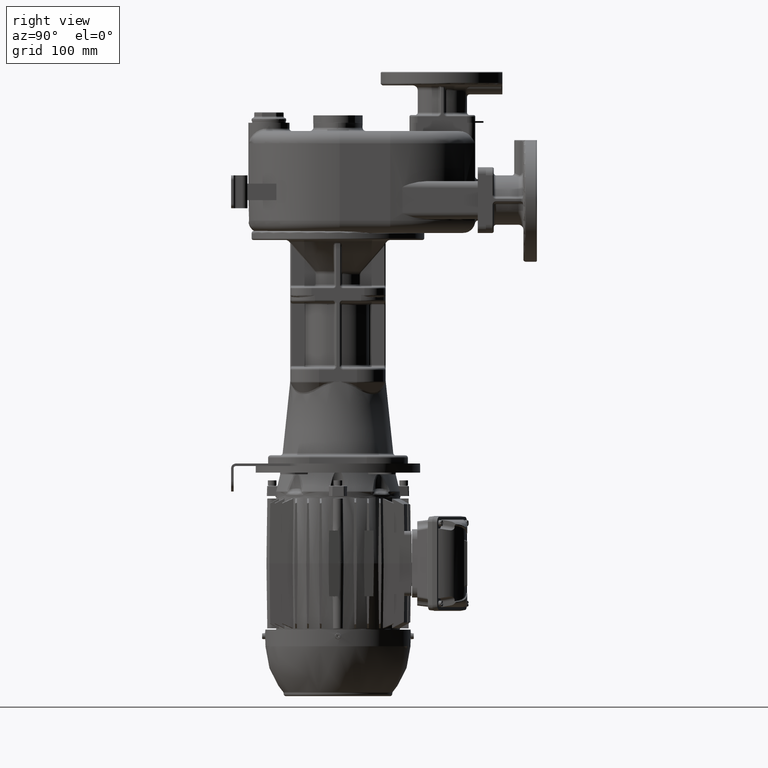
[diagram: clean part render]
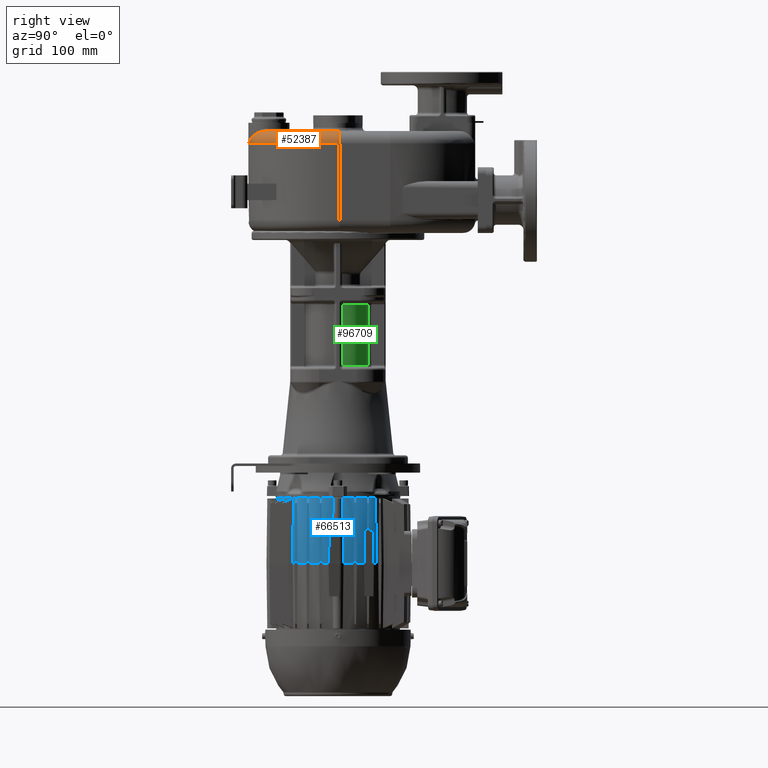
[diagram: same view with three faces highlighted in distinct colors, each labeled with its STEP entity id]
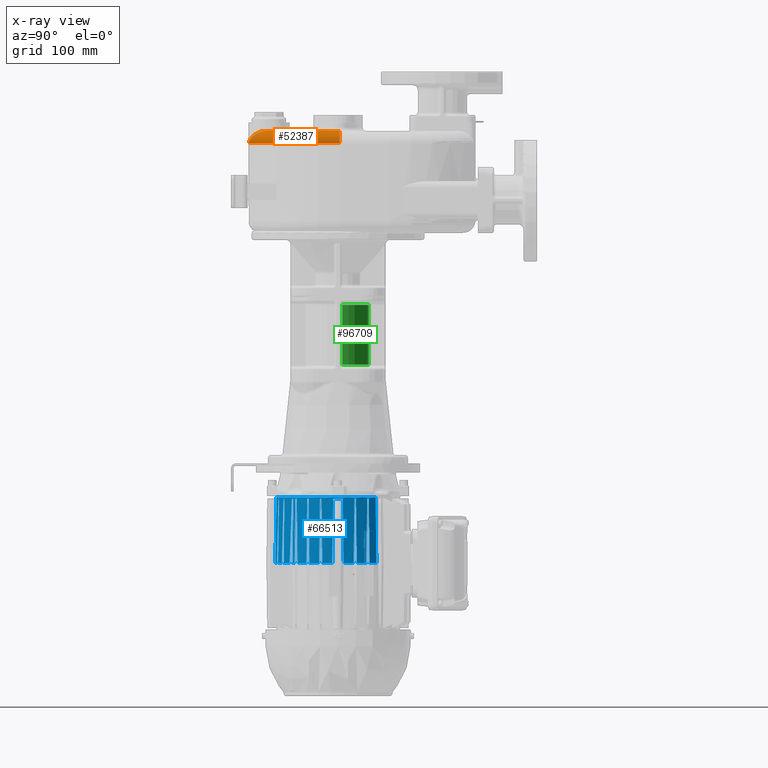
[diagram: x-ray of the same camera — body ghosted, the three highlighted faces saturated]
A machine part, right view with three faces highlighted in distinct colors.
The next image is the same camera in x-ray (body ghosted, the three faces saturated) — at least one of them is partly hidden behind the body in this view.
Their STEP definitions:

[orange] entity #52387 — the highlighted toroidal blend (fillet) surface has major radius 96 mm and minor (blend) radius 15 mm.
#3166=CARTESIAN_POINT('',(9.6E1,1.12E2,5.9E1));
#3167=DIRECTION('',(0.E0,1.E0,0.E0));
#3168=DIRECTION('',(0.E0,0.E0,1.E0));
#3169=AXIS2_PLACEMENT_3D('',#3166,#3167,#3168);
#3194=CARTESIAN_POINT('',(0.E0,1.12E2,7.4E1));
#3195=DIRECTION('',(0.E0,0.E0,1.E0));
#3196=DIRECTION('',(3.623258782085E-1,-9.320514781816E-1,0.E0));
#3197=AXIS2_PLACEMENT_3D('',#3194,#3195,#3196);
#3518=CARTESIAN_POINT('',(0.E0,1.12E2,5.9E1));
#3519=DIRECTION('',(0.E0,0.E0,1.E0));
#3520=DIRECTION('',(1.210583362927E-1,-9.926453944960E-1,0.E0));
#3521=AXIS2_PLACEMENT_3D('',#3518,#3519,#3520);
#3564=CARTESIAN_POINT('',(3.478328408610E1,2.252305816357E1,7.399999536927E1));
#3565=CARTESIAN_POINT('',(3.474381933707E1,2.233269258422E1,7.399999195411E1));
#3566=CARTESIAN_POINT('',(3.465921100208E1,2.194891764618E1,7.399468014162E1));
#3567=CARTESIAN_POINT('',(3.451484760434E1,2.136483999533E1,7.397040625989E1));
#3568=CARTESIAN_POINT('',(3.435212685462E1,2.077251495907E1,7.392953240899E1));
#3569=CARTESIAN_POINT('',(3.417023174148E1,2.017233430212E1,7.387172790800E1));
#3570=CARTESIAN_POINT('',(3.396839417789E1,1.956452160596E1,7.379663781831E1));
#3571=CARTESIAN_POINT('',(3.374580594221E1,1.894943968965E1,7.370389341725E1));
#3572=CARTESIAN_POINT('',(3.350160898052E1,1.832757538880E1,7.359313413684E1));
#3573=CARTESIAN_POINT('',(3.323495769757E1,1.769948888654E1,7.346400381952E1));
#3574=CARTESIAN_POINT('',(3.294505812765E1,1.706572433759E1,7.331612090761E1));
#3575=CARTESIAN_POINT('',(3.263115002210E1,1.642705927309E1,7.314914804671E1));
#3576=CARTESIAN_POINT('',(3.229246887648E1,1.578438212235E1,7.296278600279E1));
#3577=CARTESIAN_POINT('',(3.192829006994E1,1.513864799402E1,7.275676294809E1));
#3578=CARTESIAN_POINT('',(3.153791096791E1,1.449074635237E1,7.253077624369E1));
#3579=CARTESIAN_POINT('',(3.112072431050E1,1.384179641290E1,7.228460190224E1));
#3580=CARTESIAN_POINT('',(3.067617040335E1,1.319302512713E1,7.201807751877E1));
#3581=CARTESIAN_POINT('',(3.020372874866E1,1.254560952223E1,7.173101973622E1));
#3582=CARTESIAN_POINT('',(2.970301768282E1,1.190092573656E1,7.142333996527E1));
#3583=CARTESIAN_POINT('',(2.917382935906E1,1.126054495617E1,7.109507753407E1));
#3584=CARTESIAN_POINT('',(2.861601349763E1,1.062595941538E1,7.074625250660E1));
#3585=CARTESIAN_POINT('',(2.802955178082E1,9.998786885995E0,7.037698689965E1));
#3586=CARTESIAN_POINT('',(2.741454229372E1,9.380655306688E0,6.998743943421E1));
#3587=CARTESIAN_POINT('',(2.677121787177E1,8.773224318050E0,6.957781556804E1));
#3588=CARTESIAN_POINT('',(2.609998601019E1,8.178224343346E0,6.914840691359E1));
#3589=CARTESIAN_POINT('',(2.540141321537E1,7.597377989755E0,6.869952956421E1));
#3590=CARTESIAN_POINT('',(2.467625062041E1,7.032439275241E0,6.823156170365E1));
#3591=CARTESIAN_POINT('',(2.392550771497E1,6.485202404015E0,6.774494511404E1));
#3592=CARTESIAN_POINT('',(2.315053365634E1,5.957503873922E0,6.724021053143E1));
#3593=CARTESIAN_POINT('',(2.235282576379E1,5.451107701265E0,6.671781657144E1));
#3594=CARTESIAN_POINT('',(2.153532812617E1,4.968310079036E0,6.617895029600E1));
#3595=CARTESIAN_POINT('',(2.069923121485E1,4.510266737264E0,6.562327714298E1));
#3596=CARTESIAN_POINT('',(1.985533652194E1,4.082291216415E0,6.505653863748E1));
#3597=CARTESIAN_POINT('',(1.899431175122E1,3.679819196294E0,6.447010242063E1));
#3598=CARTESIAN_POINT('',(1.818729448766E1,3.333141821111E0,6.390978301687E1));
#3599=CARTESIAN_POINT('',(1.749109268050E1,3.056175908042E0,6.341504069393E1));
#3600=CARTESIAN_POINT('',(1.687875943916E1,2.828659018618E0,6.296796865038E1));
#3601=CARTESIAN_POINT('',(1.634310764294E1,2.641832096240E0,6.256404098028E1));
#3602=CARTESIAN_POINT('',(1.587458823025E1,2.487500047499E0,6.219712352868E1));
#3603=CARTESIAN_POINT('',(1.546655485115E1,2.359899687152E0,6.186314140728E1));
#3604=CARTESIAN_POINT('',(1.511309465719E1,2.254410096994E0,6.155865188885E1));
#3605=CARTESIAN_POINT('',(1.480906510323E1,2.167376786117E0,6.128089914307E1));
#3606=CARTESIAN_POINT('',(1.454970269700E1,2.095809777498E0,6.102756604435E1));
#3607=CARTESIAN_POINT('',(1.433048732762E1,2.037228381715E0,6.079666971320E1));
#3608=CARTESIAN_POINT('',(1.414705230951E1,1.989541783543E0,6.058646776499E1));
#3609=CARTESIAN_POINT('',(1.399519099858E1,1.950976767861E0,6.039540782044E1));
#3610=CARTESIAN_POINT('',(1.387099679760E1,1.920049164833E0,6.022230297002E1));
#3611=CARTESIAN_POINT('',(1.376999784805E1,1.895300481448E0,6.006493215514E1));
#3612=CARTESIAN_POINT('',(1.368784090369E1,1.875434198895E0,5.992032496875E1));
#3613=CARTESIAN_POINT('',(1.362108198329E1,1.859467051647E0,5.978581904143E1));
#3614=CARTESIAN_POINT('',(1.356726822056E1,1.846709662921E0,5.965949260794E1));
#3615=CARTESIAN_POINT('',(1.352459141515E1,1.836666043200E0,5.954010225935E1));
#3616=CARTESIAN_POINT('',(1.349143558620E1,1.828905718801E0,5.942591086380E1));
#3617=CARTESIAN_POINT('',(1.346657165740E1,1.823113355609E0,5.931508094518E1));
#3618=CARTESIAN_POINT('',(1.344948838952E1,1.819144465703E0,5.920736775784E1));
#3619=CARTESIAN_POINT('',(1.343959172369E1,1.816851010026E0,5.910243857409E1));
#3620=CARTESIAN_POINT('',(1.343747242259E1,1.816360829777E0,5.903388670056E1));
#3621=CARTESIAN_POINT('',(1.343747532038E1,1.816361277381E0,5.9E1));
#42174=CARTESIAN_POINT('',(9.6E1,1.12E2,7.4E1));
#42175=VERTEX_POINT('',#42174);
#42176=CARTESIAN_POINT('',(1.11E2,1.12E2,5.9E1));
#42177=VERTEX_POINT('',#42176);
#42234=VERTEX_POINT('',#3564);
#42235=VERTEX_POINT('',#3621);
#52376=CARTESIAN_POINT('',(0.E0,1.12E2,5.9E1));
#52377=DIRECTION('',(0.E0,0.E0,-1.E0));
#52378=DIRECTION('',(-9.999722327207E-1,7.452099538963E-3,0.E0));
#52379=AXIS2_PLACEMENT_3D('',#52376,#52377,#52378);
#52380=TOROIDAL_SURFACE('',#52379,9.6E1,1.5E1);
#52381=ORIENTED_EDGE('',*,*,#52304,.F.);
#52382=ORIENTED_EDGE('',*,*,#52108,.T.);
#52383=ORIENTED_EDGE('',*,*,#52078,.T.);
#52384=ORIENTED_EDGE('',*,*,#52351,.F.);
#52385=EDGE_LOOP('',(#52381,#52382,#52383,#52384));
#52386=FACE_OUTER_BOUND('',#52385,.F.);
#52387=ADVANCED_FACE('',(#52386),#52380,.T.);
#3170=CIRCLE('',#3169,1.5E1);
#3198=CIRCLE('',#3197,9.6E1);
#3522=CIRCLE('',#3521,1.11E2);
#3622=B_SPLINE_CURVE_WITH_KNOTS('',3,(#3564,#3565,#3566,#3567,#3568,#3569,#3570,
#3571,#3572,#3573,#3574,#3575,#3576,#3577,#3578,#3579,#3580,#3581,#3582,#3583,
#3584,#3585,#3586,#3587,#3588,#3589,#3590,#3591,#3592,#3593,#3594,#3595,#3596,
#3597,#3598,#3599,#3600,#3601,#3602,#3603,#3604,#3605,#3606,#3607,#3608,#3609,
#3610,#3611,#3612,#3613,#3614,#3615,#3616,#3617,#3618,#3619,#3620,#3621),
.UNSPECIFIED.,.F.,.F.,(4,1,1,1,1,1,1,1,1,1,1,1,1,1,1,1,1,1,1,1,1,1,1,1,1,1,1,1,
1,1,1,1,1,1,1,1,1,1,1,1,1,1,1,1,1,1,1,1,1,1,1,1,1,1,1,4),(0.E0,
1.818181818182E-2,3.636363636364E-2,5.454545454545E-2,7.272727272727E-2,
9.090909090909E-2,1.090909090909E-1,1.272727272727E-1,1.454545454545E-1,
1.636363636364E-1,1.818181818182E-1,2.E-1,2.181818181818E-1,2.363636363636E-1,
2.545454545455E-1,2.727272727273E-1,2.909090909091E-1,3.090909090909E-1,
3.272727272727E-1,3.454545454545E-1,3.636363636364E-1,3.818181818182E-1,4.E-1,
4.181818181818E-1,4.363636363636E-1,4.545454545455E-1,4.727272727273E-1,
4.909090909091E-1,5.090909090909E-1,5.272727272727E-1,5.454545454545E-1,
5.636363636364E-1,5.818181818182E-1,6.E-1,6.181818181818E-1,6.363636363636E-1,
6.545454545455E-1,6.727272727273E-1,6.909090909091E-1,7.090909090909E-1,
7.272727272727E-1,7.454545454545E-1,7.636363636364E-1,7.818181818182E-1,8.E-1,
8.181818181818E-1,8.363636363636E-1,8.545454545455E-1,8.727272727273E-1,
8.909090909091E-1,9.090909090909E-1,9.272727272727E-1,9.454545454545E-1,
9.636363636364E-1,9.818181818182E-1,1.E0),.UNSPECIFIED.);
#52078=EDGE_CURVE('',#42175,#42177,#3170,.T.);
#52108=EDGE_CURVE('',#42234,#42175,#3198,.T.);
#52304=EDGE_CURVE('',#42234,#42235,#3622,.T.);
#52351=EDGE_CURVE('',#42235,#42177,#3522,.T.);

[blue] entity #66513 — the highlighted conical surface has half-angle 1 deg.
#14100=CARTESIAN_POINT('',(-3.084348699154E-14,1.1E2,-3.715E2));
#14101=DIRECTION('',(0.E0,0.E0,-1.E0));
#14102=DIRECTION('',(7.924953847072E-1,6.098779100917E-1,0.E0));
#14103=AXIS2_PLACEMENT_3D('',#14100,#14101,#14102);
#14135=CARTESIAN_POINT('',(6.062751586364E1,1.566267917181E2,-4.52E2));
#14136=CARTESIAN_POINT('',(6.050115888588E1,1.565329234370E2,
-4.429833426803E2));
#14137=CARTESIAN_POINT('',(6.024911902103E1,1.563456884375E2,
-4.249981733714E2));
#14138=CARTESIAN_POINT('',(5.987308536497E1,1.560663435084E2,
-3.981651319152E2));
#14139=CARTESIAN_POINT('',(5.962373926780E1,1.558811128475E2,
-3.803723595854E2));
#14140=CARTESIAN_POINT('',(5.949940261582E1,1.557887478202E2,-3.715E2));
#14142=CARTESIAN_POINT('',(-3.084348699154E-14,1.1E2,-4.52E2));
#14143=DIRECTION('',(0.E0,0.E0,1.E0));
#14144=DIRECTION('',(8.636866764097E-1,5.040290914148E-1,0.E0));
#14145=AXIS2_PLACEMENT_3D('',#14142,#14143,#14144);
#14147=CARTESIAN_POINT('',(6.506368245744E1,1.475158333503E2,-3.73E2));
#14148=CARTESIAN_POINT('',(6.517451715727E1,1.476309780811E2,
-3.817959070613E2));
#14149=CARTESIAN_POINT('',(6.539589228678E1,1.478610570778E2,
-3.993716437593E2));
#14150=CARTESIAN_POINT('',(6.572301494604E1,1.482013120415E2,
-4.253637236051E2));
#14151=CARTESIAN_POINT('',(6.594594131651E1,1.484333705984E2,
-4.430906789259E2));
#14152=CARTESIAN_POINT('',(6.605793582695E1,1.4855E2,-4.52E2));
#14154=CARTESIAN_POINT('',(-3.084348699154E-14,1.1E2,-3.73E2));
#14155=DIRECTION('',(0.E0,0.E0,1.E0));
#14156=DIRECTION('',(8.813507880855E-1,4.724624729447E-1,0.E0));
#14157=AXIS2_PLACEMENT_3D('',#14154,#14155,#14156);
#14159=CARTESIAN_POINT('',(6.723305705192E1,1.449736286834E2,-4.12E2));
#14160=CARTESIAN_POINT('',(6.711697255613E1,1.450310055723E2,
-4.076169789224E2));
#14161=CARTESIAN_POINT('',(6.688519398190E1,1.451453256532E2,
-3.988840668800E2));
#14162=CARTESIAN_POINT('',(6.653871846412E1,1.453154995383E2,
-3.858844822135E2));
#14163=CARTESIAN_POINT('',(6.630851583286E1,1.454280882715E2,
-3.772838278328E2));
#14164=CARTESIAN_POINT('',(6.619361331780E1,1.454841666497E2,-3.73E2));
#14166=CARTESIAN_POINT('',(6.962376667991E1,1.416588770966E2,-4.52E2));
#14167=CARTESIAN_POINT('',(6.951087479146E1,1.417176907867E2,
-4.475072216678E2));
#14168=CARTESIAN_POINT('',(6.928546759041E1,1.418348962878E2,
-4.385538923482E2));
#14169=CARTESIAN_POINT('',(6.894850523948E1,1.420094339469E2,
-4.252209589436E2));
#14170=CARTESIAN_POINT('',(6.872461629686E1,1.421249552434E2,
-4.163962860293E2));
#14171=CARTESIAN_POINT('',(6.861286312020E1,1.421825057800E2,-4.12E2));
#14173=CARTESIAN_POINT('',(-3.084348699154E-14,1.1E2,-4.52E2));
#14174=DIRECTION('',(0.E0,0.E0,1.E0));
#14175=DIRECTION('',(9.535068069993E-1,3.013714800807E-1,0.E0));
#14176=AXIS2_PLACEMENT_3D('',#14173,#14174,#14175);
#14178=CARTESIAN_POINT('',(7.180545667832E1,1.320158333503E2,-3.73E2));
#14179=CARTESIAN_POINT('',(7.193108678863E1,1.321312964090E2,
-3.818202241291E2));
#14180=CARTESIAN_POINT('',(7.218164239569E1,1.323617851754E2,
-3.994272631425E2));
#14181=CARTESIAN_POINT('',(7.254951702925E1,1.327007859802E2,
-4.253235377776E2));
#14182=CARTESIAN_POINT('',(7.280122619858E1,1.329331388567E2,
-4.430729761720E2));
#14183=CARTESIAN_POINT('',(7.292770999913E1,1.3305E2,-4.52E2));
#14185=CARTESIAN_POINT('',(-3.084348699154E-14,1.1E2,-3.73E2));
#14186=DIRECTION('',(0.E0,0.E0,1.E0));
#14187=DIRECTION('',(9.639498472430E-1,2.660839942577E-1,0.E0));
#14188=AXIS2_PLACEMENT_3D('',#14185,#14186,#14187);
#14190=CARTESIAN_POINT('',(7.409892634659E1,1.2895E2,-4.52E2));
#14191=CARTESIAN_POINT('',(7.390801842359E1,1.290669746790E2,
-4.430643031841E2));
#14192=CARTESIAN_POINT('',(7.352740773958E1,1.292995454797E2,
-4.252982175520E2));
#14193=CARTESIAN_POINT('',(7.296019589525E1,1.296442359477E2,
-3.989673094947E2));
#14194=CARTESIAN_POINT('',(7.258445149411E1,1.298713125897E2,
-3.816209226961E2));
#14195=CARTESIAN_POINT('',(7.239719338626E1,1.299841666497E2,-3.73E2));
#14197=CARTESIAN_POINT('',(-3.084348699154E-14,1.1E2,-4.52E2));
#14198=DIRECTION('',(0.E0,0.E0,1.E0));
#14199=DIRECTION('',(9.958029817715E-1,9.152279221540E-2,0.E0));
#14200=AXIS2_PLACEMENT_3D('',#14197,#14198,#14199);
#14202=CARTESIAN_POINT('',(7.486741186475E1,1.159658333503E2,-3.73E2));
#14203=CARTESIAN_POINT('',(7.500989625610E1,1.160791019330E2,
-3.816525880864E2));
#14204=CARTESIAN_POINT('',(7.529582544462E1,1.163067313732E2,
-3.990412031416E2));
#14205=CARTESIAN_POINT('',(7.572755845270E1,1.166514302704E2,
-4.253727551117E2));
#14206=CARTESIAN_POINT('',(7.601731910574E1,1.168834435430E2,
-4.430962511655E2));
#14207=CARTESIAN_POINT('',(7.616267711758E1,1.17E2,-4.52E2));
#14209=CARTESIAN_POINT('',(7.616267711758E1,1.03E2,-4.52E2));
#14210=CARTESIAN_POINT('',(7.601731910365E1,1.031165564587E2,
-4.430962510378E2));
#14211=CARTESIAN_POINT('',(7.572755844783E1,1.033485697335E2,
-4.253727548137E2));
#14212=CARTESIAN_POINT('',(7.529582543975E1,1.036932686307E2,
-3.990412028448E2));
#14213=CARTESIAN_POINT('',(7.500989625401E1,1.039208980687E2,
-3.816525879592E2));
#14214=CARTESIAN_POINT('',(7.486741186475E1,1.040341666497E2,-3.73E2));
#14216=CARTESIAN_POINT('',(-3.084348699154E-14,1.1E2,-4.52E2));
#14217=DIRECTION('',(0.E0,0.E0,1.E0));
#14218=DIRECTION('',(9.688200913432E-1,-2.477652732117E-1,0.E0));
#14219=AXIS2_PLACEMENT_3D('',#14216,#14217,#14218);
#14221=CARTESIAN_POINT('',(7.239719338626E1,9.001583335030E1,-3.73E2));
#14222=CARTESIAN_POINT('',(7.258445150200E1,9.012868741508E1,
-3.816209230596E2));
#14223=CARTESIAN_POINT('',(7.296019591358E1,9.035576406345E1,
-3.989673103428E2));
#14224=CARTESIAN_POINT('',(7.352740775789E1,9.070045453147E1,
-4.252982184047E2));
#14225=CARTESIAN_POINT('',(7.390801843140E1,9.093302532581E1,
-4.430643035495E2));
#14226=CARTESIAN_POINT('',(7.409892634659E1,9.105E1,-4.52E2));
#14228=CARTESIAN_POINT('',(7.292770999913E1,8.695E1,-4.52E2));
#14229=CARTESIAN_POINT('',(7.280123012084E1,8.706685751948E1,
-4.430732529988E2));
#14230=CARTESIAN_POINT('',(7.254952598909E1,8.729920576145E1,
-4.253241686311E2));
#14231=CARTESIAN_POINT('',(7.218163304477E1,8.763822343948E1,
-3.994266050503E2));
#14232=CARTESIAN_POINT('',(7.193108267940E1,8.786870736768E1,
-3.818199356288E2));
#14233=CARTESIAN_POINT('',(7.180545667832E1,8.798416664970E1,-3.73E2));
#14235=CARTESIAN_POINT('',(-3.084348699154E-14,1.1E2,-4.52E2));
#14236=DIRECTION('',(0.E0,0.E0,1.E0));
#14237=DIRECTION('',(8.928153364932E-1,-4.504228845458E-1,0.E0));
#14238=AXIS2_PLACEMENT_3D('',#14235,#14236,#14237);
#14240=CARTESIAN_POINT('',(6.619361331780E1,7.451583335030E1,-3.73E2));
#14241=CARTESIAN_POINT('',(6.642368624750E1,7.462812085556E1,
-3.815776435727E2));
#14242=CARTESIAN_POINT('',(6.688545496702E1,7.485444193871E1,
-3.988663132215E2));
#14243=CARTESIAN_POINT('',(6.758280490341E1,7.519911989933E1,
-4.251962658430E2));
#14244=CARTESIAN_POINT('',(6.805094849807E1,7.543245327537E1,
-4.430206046108E2));
#14245=CARTESIAN_POINT('',(6.828580295872E1,7.555E1,-4.52E2));
#14247=CARTESIAN_POINT('',(6.605793582695E1,7.145E1,-4.52E2));
#14248=CARTESIAN_POINT('',(6.594594404683E1,7.156662655829E1,
-4.430908961266E2));
#14249=CARTESIAN_POINT('',(6.572302117496E1,7.179868147888E1,
-4.253642185820E2));
#14250=CARTESIAN_POINT('',(6.539588579156E1,7.213894967741E1,
-3.993711277280E2));
#14251=CARTESIAN_POINT('',(6.517451430669E1,7.236902488029E1,
-3.817956808374E2));
#14252=CARTESIAN_POINT('',(6.506368245744E1,7.248416664970E1,-3.73E2));
#14254=CARTESIAN_POINT('',(-3.084348699154E-14,1.1E2,-4.52E2));
#14255=DIRECTION('',(0.E0,0.E0,1.E0));
#14256=DIRECTION('',(7.683700680862E-1,-6.400058112777E-1,0.E0));
#14257=AXIS2_PLACEMENT_3D('',#14254,#14255,#14256);
#14259=CARTESIAN_POINT('',(5.605625398851E1,6.001583335030E1,-3.73E2));
#14260=CARTESIAN_POINT('',(5.635367315483E1,6.012688642411E1,
-3.814833453425E2));
#14261=CARTESIAN_POINT('',(5.695116885105E1,6.035156116932E1,
-3.986462512209E2));
#14262=CARTESIAN_POINT('',(5.785492913746E1,6.069620488612E1,
-4.249735879561E2));
#14263=CARTESIAN_POINT('',(5.846266752891E1,6.093120380096E1,
-4.429251572494E2));
#14264=CARTESIAN_POINT('',(5.876777080779E1,6.105E1,-4.52E2));
#14266=CARTESIAN_POINT('',(-3.084348699154E-14,1.1E2,-3.73E2));
#14267=DIRECTION('',(0.E0,0.E0,1.E0));
#14268=DIRECTION('',(7.213436402846E-1,-6.925773260951E-1,0.E0));
#14269=AXIS2_PLACEMENT_3D('',#14266,#14267,#14268);
#14271=CARTESIAN_POINT('',(5.509492613405E1,5.695E1,-4.52E2));
#14272=CARTESIAN_POINT('',(5.499152302921E1,5.706642476498E1,
-4.431063111188E2));
#14273=CARTESIAN_POINT('',(5.478560744890E1,5.729826246428E1,
-4.253962271110E2));
#14274=CARTESIAN_POINT('',(5.447942473397E1,5.764296264862E1,
-3.990645768199E2));
#14275=CARTESIAN_POINT('',(5.427705976645E1,5.787076694037E1,
-3.816626048515E2));
#14276=CARTESIAN_POINT('',(5.417631962180E1,5.798416664970E1,-3.73E2));
#14278=CARTESIAN_POINT('',(-3.084348699154E-14,1.1E2,-4.52E2));
#14279=DIRECTION('',(0.E0,0.E0,1.E0));
#14280=DIRECTION('',(6.936120181467E-1,-7.203487823842E-1,0.E0));
#14281=AXIS2_PLACEMENT_3D('',#14278,#14279,#14280);
#14283=CARTESIAN_POINT('',(5.201583335030E1,5.582368037820E1,-3.73E2));
#14284=CARTESIAN_POINT('',(5.212923305965E1,5.572294023353E1,
-3.816626048533E2));
#14285=CARTESIAN_POINT('',(5.235703735144E1,5.552057526599E1,
-3.990645768240E2));
#14286=CARTESIAN_POINT('',(5.270173753578E1,5.521439255106E1,
-4.253962271151E2));
#14287=CARTESIAN_POINT('',(5.293357523504E1,5.500847697077E1,
-4.431063111206E2));
#14288=CARTESIAN_POINT('',(5.305E1,5.490507386595E1,-4.52E2));
#14290=CARTESIAN_POINT('',(-3.084348699154E-14,1.1E2,-3.73E2));
#14291=DIRECTION('',(0.E0,0.E0,1.E0));
#14292=DIRECTION('',(6.655262110713E-1,-7.463744786480E-1,0.E0));
#14293=AXIS2_PLACEMENT_3D('',#14290,#14291,#14292);
#14295=CARTESIAN_POINT('',(4.895E1,5.123222919221E1,-4.52E2));
#14296=CARTESIAN_POINT('',(4.906879622298E1,5.153733253259E1,
-4.429251554202E2));
#14297=CARTESIAN_POINT('',(4.930379516975E1,5.214507100772E1,
-4.249735836885E2));
#14298=CARTESIAN_POINT('',(4.964843888585E1,5.304883129491E1,
-3.986462470067E2));
#14299=CARTESIAN_POINT('',(4.987311359953E1,5.364632690848E1,
-3.814833435367E2));
#14300=CARTESIAN_POINT('',(4.998416664970E1,5.394374601149E1,-3.73E2));
#14302=CARTESIAN_POINT('',(-3.084348699154E-14,1.1E2,-4.52E2));
#14303=DIRECTION('',(0.E0,0.E0,1.E0));
#14304=DIRECTION('',(5.040290914148E-1,-8.636866764097E-1,0.E0));
#14305=AXIS2_PLACEMENT_3D('',#14302,#14303,#14304);
#14307=CARTESIAN_POINT('',(3.751583335030E1,4.493631754256E1,-3.73E2));
#14308=CARTESIAN_POINT('',(3.763097808115E1,4.482548284272E1,
-3.817959070617E2));
#14309=CARTESIAN_POINT('',(3.786105707782E1,4.460410771321E1,
-3.993716437601E2));
#14310=CARTESIAN_POINT('',(3.820131204153E1,4.427698505395E1,
-4.253637236059E2));
#14311=CARTESIAN_POINT('',(3.843337059841E1,4.405405868349E1,
-4.430906789263E2));
#14312=CARTESIAN_POINT('',(3.855E1,4.394206417305E1,-4.52E2));
#14314=CARTESIAN_POINT('',(-3.084348699154E-14,1.1E2,-3.73E2));
#14315=DIRECTION('',(0.E0,0.E0,1.E0));
#14316=DIRECTION('',(4.724624729447E-1,-8.813507880855E-1,0.E0));
#14317=AXIS2_PLACEMENT_3D('',#14314,#14315,#14316);
#14319=CARTESIAN_POINT('',(3.445E1,4.171419704128E1,-4.52E2));
#14320=CARTESIAN_POINT('',(3.456754673442E1,4.194905152149E1,
-4.430206038629E2));
#14321=CARTESIAN_POINT('',(3.480088012351E1,4.241719514256E1,
-4.251962640980E2));
#14322=CARTESIAN_POINT('',(3.514555808396E1,4.311454507910E1,
-3.988663114898E2));
#14323=CARTESIAN_POINT('',(3.537187915415E1,4.357631377241E1,
-3.815776428306E2));
#14324=CARTESIAN_POINT('',(3.548416664970E1,4.380638668220E1,-3.73E2));
#14326=CARTESIAN_POINT('',(-3.084348699154E-14,1.1E2,-4.52E2));
#14327=DIRECTION('',(0.E0,0.E0,1.E0));
#14328=DIRECTION('',(3.013714800807E-1,-9.535068069993E-1,0.E0));
#14329=AXIS2_PLACEMENT_3D('',#14326,#14327,#14328);
#14331=CARTESIAN_POINT('',(2.201583335030E1,3.819454332168E1,-3.73E2));
#14332=CARTESIAN_POINT('',(2.213129640901E1,3.806891321136E1,
-3.818202241297E2));
#14333=CARTESIAN_POINT('',(2.236178517544E1,3.781835760429E1,
-3.994272631439E2));
#14334=CARTESIAN_POINT('',(2.270078598024E1,3.745048297073E1,
-4.253235377790E2));
#14335=CARTESIAN_POINT('',(2.293313885667E1,3.719877380141E1,
-4.430729761726E2));
#14336=CARTESIAN_POINT('',(2.305E1,3.707229000087E1,-4.52E2));
#14338=CARTESIAN_POINT('',(-3.084348699154E-14,1.1E2,-3.73E2));
#14339=DIRECTION('',(0.E0,0.E0,1.E0));
#14340=DIRECTION('',(2.660839942577E-1,-9.639498472430E-1,0.E0));
#14341=AXIS2_PLACEMENT_3D('',#14338,#14339,#14340);
#14343=CARTESIAN_POINT('',(1.895E1,3.590107365341E1,-4.52E2));
#14344=CARTESIAN_POINT('',(1.906697467897E1,3.609198157641E1,
-4.430643031841E2));
#14345=CARTESIAN_POINT('',(1.929954547969E1,3.647259226042E1,
-4.252982175520E2));
#14346=CARTESIAN_POINT('',(1.964423594765E1,3.703980410475E1,
-3.989673094947E2));
#14347=CARTESIAN_POINT('',(1.987131258968E1,3.741554850589E1,
-3.816209226961E2));
#14348=CARTESIAN_POINT('',(1.998416664970E1,3.760280661374E1,-3.73E2));
#14350=CARTESIAN_POINT('',(-3.084348699154E-14,1.1E2,-4.52E2));
#14351=DIRECTION('',(0.E0,0.E0,1.E0));
#14352=DIRECTION('',(9.152279221540E-2,-9.958029817715E-1,0.E0));
#14353=AXIS2_PLACEMENT_3D('',#14350,#14351,#14352);
#14355=CARTESIAN_POINT('',(5.965833350298E0,3.513258813525E1,-3.73E2));
#14356=CARTESIAN_POINT('',(6.079101932989E0,3.499010374390E1,
-3.816525880864E2));
#14357=CARTESIAN_POINT('',(6.306731373174E0,3.470417455538E1,
-3.990412031416E2));
#14358=CARTESIAN_POINT('',(6.651430270419E0,3.427244154730E1,
-4.253727551117E2));
#14359=CARTESIAN_POINT('',(6.883443543014E0,3.398268089426E1,
-4.430962511655E2));
#14360=CARTESIAN_POINT('',(7.E0,3.383732288242E1,-4.52E2));
#14362=CARTESIAN_POINT('',(-7.E0,3.383732288242E1,-4.52E2));
#14363=CARTESIAN_POINT('',(-6.883443541342E0,3.398268089635E1,
-4.430962510378E2));
#14364=CARTESIAN_POINT('',(-6.651430266518E0,3.427244155217E1,
-4.253727548137E2));
#14365=CARTESIAN_POINT('',(-6.306731369288E0,3.470417456025E1,
-3.990412028448E2));
#14366=CARTESIAN_POINT('',(-6.079101931323E0,3.499010374599E1,
-3.816525879592E2));
#14367=CARTESIAN_POINT('',(-5.965833350298E0,3.513258813525E1,-3.73E2));
#14369=CARTESIAN_POINT('',(-3.084348699154E-14,1.1E2,-4.52E2));
#14370=DIRECTION('',(0.E0,0.E0,1.E0));
#14371=DIRECTION('',(-2.477652732117E-1,-9.688200913432E-1,0.E0));
#14372=AXIS2_PLACEMENT_3D('',#14369,#14370,#14371);
#14374=CARTESIAN_POINT('',(-1.998416664970E1,3.760280661374E1,-3.73E2));
#14375=CARTESIAN_POINT('',(-1.987131258492E1,3.741554849800E1,
-3.816209230596E2));
#14376=CARTESIAN_POINT('',(-1.964423593655E1,3.703980408642E1,
-3.989673103428E2));
#14377=CARTESIAN_POINT('',(-1.929954546853E1,3.647259224211E1,
-4.252982184047E2));
#14378=CARTESIAN_POINT('',(-1.906697467419E1,3.609198156860E1,
-4.430643035495E2));
#14379=CARTESIAN_POINT('',(-1.895E1,3.590107365341E1,-4.52E2));
#14381=CARTESIAN_POINT('',(-2.305E1,3.707229000087E1,-4.52E2));
#14382=CARTESIAN_POINT('',(-2.293314248052E1,3.719876987917E1,
-4.430732529986E2));
#14383=CARTESIAN_POINT('',(-2.270079423854E1,3.745047401091E1,
-4.253241686306E2));
#14384=CARTESIAN_POINT('',(-2.236177656052E1,3.781836695523E1,
-3.994266050498E2));
#14385=CARTESIAN_POINT('',(-2.213129263232E1,3.806891732060E1,
-3.818199356286E2));
#14386=CARTESIAN_POINT('',(-2.201583335030E1,3.819454332168E1,-3.73E2));
#14388=CARTESIAN_POINT('',(-3.084348699154E-14,1.1E2,-4.52E2));
#14389=DIRECTION('',(0.E0,0.E0,1.E0));
#14390=DIRECTION('',(-4.504228845458E-1,-8.928153364932E-1,0.E0));
#14391=AXIS2_PLACEMENT_3D('',#14388,#14389,#14390);
#14393=CARTESIAN_POINT('',(-3.548416664970E1,4.380638668220E1,-3.73E2));
#14394=CARTESIAN_POINT('',(-3.537187914444E1,4.357631375250E1,
-3.815776435727E2));
#14395=CARTESIAN_POINT('',(-3.514555806129E1,4.311454503298E1,
-3.988663132215E2));
#14396=CARTESIAN_POINT('',(-3.480088010067E1,4.241719509660E1,
-4.251962658430E2));
#14397=CARTESIAN_POINT('',(-3.456754672463E1,4.194905150193E1,
-4.430206046108E2));
#14398=CARTESIAN_POINT('',(-3.445E1,4.171419704128E1,-4.52E2));
#14400=CARTESIAN_POINT('',(-3.855E1,4.394206417305E1,-4.52E2));
#14401=CARTESIAN_POINT('',(-3.843337344171E1,4.405405595317E1,
-4.430908961266E2));
#14402=CARTESIAN_POINT('',(-3.820131852112E1,4.427697882504E1,
-4.253642185819E2));
#14403=CARTESIAN_POINT('',(-3.786105032259E1,4.460411420844E1,
-3.993711277279E2));
#14404=CARTESIAN_POINT('',(-3.763097511971E1,4.482548569331E1,
-3.817956808374E2));
#14405=CARTESIAN_POINT('',(-3.751583335030E1,4.493631754256E1,-3.73E2));
#14407=CARTESIAN_POINT('',(-3.084348699154E-14,1.1E2,-4.52E2));
#14408=DIRECTION('',(0.E0,0.E0,1.E0));
#14409=DIRECTION('',(-6.400058112777E-1,-7.683700680862E-1,0.E0));
#14410=AXIS2_PLACEMENT_3D('',#14407,#14408,#14409);
#14412=CARTESIAN_POINT('',(-4.998416664970E1,5.394374601149E1,-3.73E2));
#14413=CARTESIAN_POINT('',(-4.987311357589E1,5.364632684517E1,
-3.814833453425E2));
#14414=CARTESIAN_POINT('',(-4.964843883068E1,5.304883114895E1,
-3.986462512209E2));
#14415=CARTESIAN_POINT('',(-4.930379511388E1,5.214507086254E1,
-4.249735879561E2));
#14416=CARTESIAN_POINT('',(-4.906879619904E1,5.153733247109E1,
-4.429251572494E2));
#14417=CARTESIAN_POINT('',(-4.895E1,5.123222919221E1,-4.52E2));
#14419=CARTESIAN_POINT('',(-5.287982067790E1,5.505622215623E1,-4.39E2));
#14420=CARTESIAN_POINT('',(-5.278276203701E1,5.514242843887E1,
-4.315856895187E2));
#14421=CARTESIAN_POINT('',(-5.258935160521E1,5.531421881695E1,
-4.168110648331E2));
#14422=CARTESIAN_POINT('',(-5.230136871333E1,5.557002684690E1,
-3.948120490403E2));
#14423=CARTESIAN_POINT('',(-5.211077754419E1,5.573933543690E1,
-3.802527878556E2));
#14424=CARTESIAN_POINT('',(-5.201583335030E1,5.582368037820E1,-3.73E2));
#14426=CARTESIAN_POINT('',(-5.417631962180E1,5.798416664970E1,-3.73E2));
#14427=CARTESIAN_POINT('',(-5.426066456311E1,5.788922245579E1,
-3.802527878567E2));
#14428=CARTESIAN_POINT('',(-5.442997315313E1,5.769863128664E1,
-3.948120490427E2));
#14429=CARTESIAN_POINT('',(-5.468578118308E1,5.741064839476E1,
-4.168110648355E2));
#14430=CARTESIAN_POINT('',(-5.485757156114E1,5.721723796298E1,
-4.315856895197E2));
#14431=CARTESIAN_POINT('',(-5.494377784377E1,5.712017932210E1,-4.39E2));
#14433=CARTESIAN_POINT('',(-5.876777080779E1,6.105E1,-4.52E2));
#14434=CARTESIAN_POINT('',(-5.846266746741E1,6.093120377702E1,
-4.429251554202E2));
#14435=CARTESIAN_POINT('',(-5.785492899228E1,6.069620483025E1,
-4.249735836885E2));
#14436=CARTESIAN_POINT('',(-5.695116870509E1,6.035156111415E1,
-3.986462470067E2));
#14437=CARTESIAN_POINT('',(-5.635367309152E1,6.012688640047E1,
-3.814833435367E2));
#14438=CARTESIAN_POINT('',(-5.605625398851E1,6.001583335030E1,-3.73E2));
#14440=CARTESIAN_POINT('',(-3.084348699154E-14,1.1E2,-4.52E2));
#14441=DIRECTION('',(0.E0,0.E0,1.E0));
#14442=DIRECTION('',(-8.636866764097E-1,-5.040290914148E-1,0.E0));
#14443=AXIS2_PLACEMENT_3D('',#14440,#14441,#14442);
#14445=CARTESIAN_POINT('',(-6.506368245744E1,7.248416664970E1,-3.73E2));
#14446=CARTESIAN_POINT('',(-6.517451715726E1,7.236902191887E1,
-3.817959070604E2));
#14447=CARTESIAN_POINT('',(-6.539589228675E1,7.213894292222E1,
-3.993716437571E2));
#14448=CARTESIAN_POINT('',(-6.572301494601E1,7.179868795851E1,
-4.253637236029E2));
#14449=CARTESIAN_POINT('',(-6.594594131650E1,7.156662940161E1,
-4.430906789250E2));
#14450=CARTESIAN_POINT('',(-6.605793582695E1,7.145E1,-4.52E2));
#14452=CARTESIAN_POINT('',(-3.084348699154E-14,1.1E2,-3.73E2));
#14453=DIRECTION('',(0.E0,0.E0,1.E0));
#14454=DIRECTION('',(-8.813507880855E-1,-4.724624729447E-1,0.E0));
#14455=AXIS2_PLACEMENT_3D('',#14452,#14453,#14454);
#14457=CARTESIAN_POINT('',(-6.828580295872E1,7.555E1,-4.52E2));
#14458=CARTESIAN_POINT('',(-6.805094847851E1,7.543245326558E1,
-4.430206038629E2));
#14459=CARTESIAN_POINT('',(-6.758280485744E1,7.519911987649E1,
-4.251962640980E2));
#14460=CARTESIAN_POINT('',(-6.688545492090E1,7.485444191604E1,
-3.988663114898E2));
#14461=CARTESIAN_POINT('',(-6.642368622759E1,7.462812084585E1,
-3.815776428306E2));
#14462=CARTESIAN_POINT('',(-6.619361331780E1,7.451583335030E1,-3.73E2));
#14464=CARTESIAN_POINT('',(-3.084348699154E-14,1.1E2,-4.52E2));
#14465=DIRECTION('',(0.E0,0.E0,1.E0));
#14466=DIRECTION('',(-9.535068069993E-1,-3.013714800807E-1,0.E0));
#14467=AXIS2_PLACEMENT_3D('',#14464,#14465,#14466);
#14469=CARTESIAN_POINT('',(-7.180545667832E1,8.798416664970E1,-3.73E2));
#14470=CARTESIAN_POINT('',(-7.193108678863E1,8.786870359101E1,
-3.818202241288E2));
#14471=CARTESIAN_POINT('',(-7.218164239568E1,8.763821482459E1,
-3.994272631419E2));
#14472=CARTESIAN_POINT('',(-7.254951702924E1,8.729921401979E1,
-4.253235377770E2));
#14473=CARTESIAN_POINT('',(-7.280122619857E1,8.706686114335E1,
-4.430729761718E2));
#14474=CARTESIAN_POINT('',(-7.292770999913E1,8.695E1,-4.52E2));
#14476=CARTESIAN_POINT('',(-3.084348699154E-14,1.1E2,-3.73E2));
#14477=DIRECTION('',(0.E0,0.E0,1.E0));
#14478=DIRECTION('',(-9.639498472430E-1,-2.660839942577E-1,0.E0));
#14479=AXIS2_PLACEMENT_3D('',#14476,#14477,#14478);
#14481=CARTESIAN_POINT('',(-7.409892634659E1,9.105E1,-4.52E2));
#14482=CARTESIAN_POINT('',(-7.390801842359E1,9.093302532103E1,
-4.430643031841E2));
#14483=CARTESIAN_POINT('',(-7.352740773958E1,9.070045452031E1,
-4.252982175520E2));
#14484=CARTESIAN_POINT('',(-7.296019589525E1,9.035576405235E1,
-3.989673094947E2));
#14485=CARTESIAN_POINT('',(-7.258445149411E1,9.012868741032E1,
-3.816209226961E2));
#14486=CARTESIAN_POINT('',(-7.239719338626E1,9.001583335030E1,-3.73E2));
#14488=CARTESIAN_POINT('',(-3.084348699154E-14,1.1E2,-4.52E2));
#14489=DIRECTION('',(0.E0,0.E0,1.E0));
#14490=DIRECTION('',(-9.958029817715E-1,-9.152279221540E-2,0.E0));
#14491=AXIS2_PLACEMENT_3D('',#14488,#14489,#14490);
#14493=CARTESIAN_POINT('',(-7.486741186475E1,1.040341666497E2,-3.73E2));
#14494=CARTESIAN_POINT('',(-7.500989625610E1,1.039208980670E2,
-3.816525880864E2));
#14495=CARTESIAN_POINT('',(-7.529582544462E1,1.036932686268E2,
-3.990412031416E2));
#14496=CARTESIAN_POINT('',(-7.572755845270E1,1.033485697296E2,
-4.253727551117E2));
#14497=CARTESIAN_POINT('',(-7.601731910574E1,1.031165564570E2,
-4.430962511655E2));
#14498=CARTESIAN_POINT('',(-7.616267711758E1,1.03E2,-4.52E2));
#14500=CARTESIAN_POINT('',(-7.616267711758E1,1.17E2,-4.52E2));
#14501=CARTESIAN_POINT('',(-7.601731910366E1,1.168834435413E2,
-4.430962510378E2));
#14502=CARTESIAN_POINT('',(-7.572755844783E1,1.166514302665E2,
-4.253727548137E2));
#14503=CARTESIAN_POINT('',(-7.529582543975E1,1.163067313693E2,
-3.990412028448E2));
#14504=CARTESIAN_POINT('',(-7.500989625401E1,1.160791019313E2,
-3.816525879592E2));
#14505=CARTESIAN_POINT('',(-7.486741186475E1,1.159658333503E2,-3.73E2));
#14507=CARTESIAN_POINT('',(-3.084348699154E-14,1.1E2,-4.52E2));
#14508=DIRECTION('',(0.E0,0.E0,1.E0));
#14509=DIRECTION('',(-9.688200913432E-1,2.477652732117E-1,0.E0));
#14510=AXIS2_PLACEMENT_3D('',#14507,#14508,#14509);
#14512=CARTESIAN_POINT('',(-7.239719338626E1,1.299841666497E2,-3.73E2));
#14513=CARTESIAN_POINT('',(-7.258445150200E1,1.298713125849E2,
-3.816209230596E2));
#14514=CARTESIAN_POINT('',(-7.296019591358E1,1.296442359366E2,
-3.989673103428E2));
#14515=CARTESIAN_POINT('',(-7.352740775789E1,1.292995454685E2,
-4.252982184047E2));
#14516=CARTESIAN_POINT('',(-7.390801843140E1,1.290669746742E2,
-4.430643035495E2));
#14517=CARTESIAN_POINT('',(-7.409892634659E1,1.2895E2,-4.52E2));
#14519=CARTESIAN_POINT('',(-7.292770999913E1,1.3305E2,-4.52E2));
#14520=CARTESIAN_POINT('',(-7.280123012083E1,1.329331424805E2,
-4.430732529986E2));
#14521=CARTESIAN_POINT('',(-7.254952598909E1,1.327007942385E2,
-4.253241686306E2));
#14522=CARTESIAN_POINT('',(-7.218163304477E1,1.323617765605E2,
-3.994266050498E2));
#14523=CARTESIAN_POINT('',(-7.193108267940E1,1.321312926323E2,
-3.818199356286E2));
#14524=CARTESIAN_POINT('',(-7.180545667832E1,1.320158333503E2,-3.73E2));
#14526=CARTESIAN_POINT('',(-3.084348699154E-14,1.1E2,-4.52E2));
#14527=DIRECTION('',(0.E0,0.E0,1.E0));
#14528=DIRECTION('',(-8.928153364932E-1,4.504228845458E-1,0.E0));
#14529=AXIS2_PLACEMENT_3D('',#14526,#14527,#14528);
#14531=CARTESIAN_POINT('',(-6.619361331780E1,1.454841666497E2,-3.73E2));
#14532=CARTESIAN_POINT('',(-6.642368624750E1,1.453718791444E2,
-3.815776435727E2));
#14533=CARTESIAN_POINT('',(-6.688545496702E1,1.451455580613E2,
-3.988663132215E2));
#14534=CARTESIAN_POINT('',(-6.758280490341E1,1.448008801007E2,
-4.251962658430E2));
#14535=CARTESIAN_POINT('',(-6.805094849807E1,1.445675467246E2,
-4.430206046108E2));
#14536=CARTESIAN_POINT('',(-6.828580295872E1,1.4445E2,-4.52E2));
#14538=CARTESIAN_POINT('',(-6.605793582695E1,1.4855E2,-4.52E2));
#14539=CARTESIAN_POINT('',(-6.594594404683E1,1.484333734417E2,
-4.430908961267E2));
#14540=CARTESIAN_POINT('',(-6.572302117496E1,1.482013185211E2,
-4.253642185820E2));
#14541=CARTESIAN_POINT('',(-6.539588579156E1,1.478610503226E2,
-3.993711277280E2));
#14542=CARTESIAN_POINT('',(-6.517451430669E1,1.476309751197E2,
-3.817956808374E2));
#14543=CARTESIAN_POINT('',(-6.506368245744E1,1.475158333503E2,-3.73E2));
#14545=CARTESIAN_POINT('',(-3.084348699154E-14,1.1E2,-4.52E2));
#14546=DIRECTION('',(0.E0,0.E0,1.E0));
#14547=DIRECTION('',(-7.926856481320E-1,6.096305957263E-1,0.E0));
#14548=AXIS2_PLACEMENT_3D('',#14545,#14546,#14547);
#14550=CARTESIAN_POINT('',(-5.949940261582E1,1.557887478202E2,-3.715E2));
#14551=CARTESIAN_POINT('',(-5.962373591813E1,1.558811103591E2,
-3.803721205610E2));
#14552=CARTESIAN_POINT('',(-5.987307754854E1,1.560663377019E2,
-3.981645741515E2));
#14553=CARTESIAN_POINT('',(-6.024911115666E1,1.563456825952E2,
-4.249976121831E2));
#14554=CARTESIAN_POINT('',(-6.050115551521E1,1.565329209329E2,
-4.429831021538E2));
#14555=CARTESIAN_POINT('',(-6.062751586364E1,1.566267917181E2,-4.52E2));
#28401=CARTESIAN_POINT('',(6.605793582695E1,1.4855E2,-4.52E2));
#28418=CARTESIAN_POINT('',(-6.605793582695E1,1.4855E2,-4.52E2));
#28444=CARTESIAN_POINT('',(-6.605793582695E1,7.145E1,-4.52E2));
#28480=CARTESIAN_POINT('',(-3.855E1,4.394206417305E1,-4.52E2));
#28492=CARTESIAN_POINT('',(-2.305E1,3.707229000087E1,-4.52E2));
#28666=CARTESIAN_POINT('',(-7.E0,3.383732288242E1,-4.52E2));
#28845=CARTESIAN_POINT('',(-3.084348699154E-14,1.1E2,-3.73E2));
#28846=DIRECTION('',(0.E0,0.E0,-1.E0));
#28847=DIRECTION('',(0.E0,-1.E0,0.E0));
#28848=AXIS2_PLACEMENT_3D('',#28845,#28846,#28847);
#28850=CARTESIAN_POINT('',(-3.084348699154E-14,1.1E2,-3.73E2));
#28851=DIRECTION('',(0.E0,0.E0,-1.E0));
#28852=DIRECTION('',(7.943352328613E-2,-9.968401654119E-1,0.E0));
#28853=AXIS2_PLACEMENT_3D('',#28850,#28851,#28852);
#28925=CARTESIAN_POINT('',(1.998416664970E1,3.760280661374E1,-3.73E2));
#28939=CARTESIAN_POINT('',(2.201583335030E1,3.819454332168E1,-3.73E2));
#29015=CARTESIAN_POINT('',(3.548416664970E1,4.380638668220E1,-3.73E2));
#29033=CARTESIAN_POINT('',(3.751583335030E1,4.493631754256E1,-3.73E2));
#29085=CARTESIAN_POINT('',(4.998416664970E1,5.394374601149E1,-3.73E2));
#29108=CARTESIAN_POINT('',(5.201583335030E1,5.582368037820E1,-3.73E2));
#29230=CARTESIAN_POINT('',(5.417631962180E1,5.798416664970E1,-3.73E2));
#29253=CARTESIAN_POINT('',(5.605625398851E1,6.001583335030E1,-3.73E2));
#29401=CARTESIAN_POINT('',(-3.084348699154E-14,1.1E2,-3.73E2));
#29402=DIRECTION('',(0.E0,0.E0,-1.E0));
#29403=DIRECTION('',(8.813507880855E-1,-4.724624729447E-1,0.E0));
#29404=AXIS2_PLACEMENT_3D('',#29401,#29402,#29403);
#29414=CARTESIAN_POINT('',(6.619361331780E1,7.451583335030E1,-3.73E2));
#29423=CARTESIAN_POINT('',(6.506368245744E1,7.248416664970E1,-3.73E2));
#29491=CARTESIAN_POINT('',(-3.084348699154E-14,1.1E2,-3.73E2));
#29492=DIRECTION('',(0.E0,0.E0,-1.E0));
#29493=DIRECTION('',(9.639498472430E-1,-2.660839942577E-1,0.E0));
#29494=AXIS2_PLACEMENT_3D('',#29491,#29492,#29493);
#29502=CARTESIAN_POINT('',(7.239719338626E1,9.001583335030E1,-3.73E2));
#29511=CARTESIAN_POINT('',(7.180545667832E1,8.798416664970E1,-3.73E2));
#29806=CARTESIAN_POINT('',(-3.084348699154E-14,1.1E2,-3.73E2));
#29807=DIRECTION('',(0.E0,0.E0,-1.E0));
#29808=DIRECTION('',(9.968401654119E-1,7.943352328613E-2,0.E0));
#29809=AXIS2_PLACEMENT_3D('',#29806,#29807,#29808);
#30313=CARTESIAN_POINT('',(-3.084348699154E-14,1.1E2,-4.12E2));
#30314=DIRECTION('',(0.E0,0.E0,-1.E0));
#30315=DIRECTION('',(8.871496082841E-1,4.614819308720E-1,0.E0));
#30316=AXIS2_PLACEMENT_3D('',#30313,#30314,#30315);
#30333=CARTESIAN_POINT('',(6.619361331780E1,1.454841666497E2,-3.73E2));
#30351=CARTESIAN_POINT('',(6.506368245744E1,1.475158333503E2,-3.73E2));
#31544=CARTESIAN_POINT('',(-6.828580295872E1,1.4445E2,-4.52E2));
#31572=CARTESIAN_POINT('',(-6.506368245744E1,1.475158333503E2,-3.73E2));
#31582=CARTESIAN_POINT('',(-3.084348699154E-14,1.1E2,-3.73E2));
#31583=DIRECTION('',(0.E0,0.E0,-1.E0));
#31584=DIRECTION('',(-8.813507880855E-1,4.724624729447E-1,0.E0));
#31585=AXIS2_PLACEMENT_3D('',#31582,#31583,#31584);
#31595=CARTESIAN_POINT('',(-6.619361331780E1,1.454841666497E2,-3.73E2));
#31662=CARTESIAN_POINT('',(-7.180545667832E1,1.320158333503E2,-3.73E2));
#31670=CARTESIAN_POINT('',(-3.084348699154E-14,1.1E2,-3.73E2));
#31671=DIRECTION('',(0.E0,0.E0,-1.E0));
#31672=DIRECTION('',(-9.639498472430E-1,2.660839942577E-1,0.E0));
#31673=AXIS2_PLACEMENT_3D('',#31670,#31671,#31672);
#31681=CARTESIAN_POINT('',(-7.239719338626E1,1.299841666497E2,-3.73E2));
#31691=CARTESIAN_POINT('',(-7.616267711758E1,1.17E2,-4.52E2));
#31902=CARTESIAN_POINT('',(-3.084348699154E-14,1.1E2,-3.73E2));
#31903=DIRECTION('',(0.E0,0.E0,-1.E0));
#31904=DIRECTION('',(-9.968401654119E-1,-7.943352328613E-2,0.E0));
#31905=AXIS2_PLACEMENT_3D('',#31902,#31903,#31904);
#32036=CARTESIAN_POINT('',(-7.616267711758E1,1.03E2,-4.52E2));
#32113=CARTESIAN_POINT('',(-7.239719338626E1,9.001583335030E1,-3.73E2));
#32127=CARTESIAN_POINT('',(-7.180545667832E1,8.798416664970E1,-3.73E2));
#32133=CARTESIAN_POINT('',(-6.828580295872E1,7.555E1,-4.52E2));
#32203=CARTESIAN_POINT('',(-6.619361331780E1,7.451583335030E1,-3.73E2));
#32221=CARTESIAN_POINT('',(-6.506368245744E1,7.248416664970E1,-3.73E2));
#32299=CARTESIAN_POINT('',(-3.084348699154E-14,1.1E2,-4.39E2));
#32300=DIRECTION('',(0.E0,0.E0,-1.E0));
#32301=DIRECTION('',(-6.934443246233E-1,-7.205102141176E-1,0.E0));
#32302=AXIS2_PLACEMENT_3D('',#32299,#32300,#32301);
#32332=CARTESIAN_POINT('',(-3.084348699154E-14,1.1E2,-3.73E2));
#32333=DIRECTION('',(0.E0,0.E0,-1.E0));
#32334=DIRECTION('',(-6.655262110713E-1,-7.463744786480E-1,0.E0));
#32335=AXIS2_PLACEMENT_3D('',#32332,#32333,#32334);
#32347=CARTESIAN_POINT('',(-4.998416664970E1,5.394374601149E1,-3.73E2));
#32356=CARTESIAN_POINT('',(-5.201583335030E1,5.582368037820E1,-3.73E2));
#32631=CARTESIAN_POINT('',(-5.605625398851E1,6.001583335030E1,-3.73E2));
#32643=CARTESIAN_POINT('',(-3.084348699154E-14,1.1E2,-3.73E2));
#32644=DIRECTION('',(0.E0,0.E0,-1.E0));
#32645=DIRECTION('',(-7.213436402846E-1,-6.925773260951E-1,0.E0));
#32646=AXIS2_PLACEMENT_3D('',#32643,#32644,#32645);
#32659=CARTESIAN_POINT('',(-5.417631962180E1,5.798416664970E1,-3.73E2));
#32726=CARTESIAN_POINT('',(-3.751583335030E1,4.493631754256E1,-3.73E2));
#32736=CARTESIAN_POINT('',(-3.084348699154E-14,1.1E2,-3.73E2));
#32737=DIRECTION('',(0.E0,0.E0,-1.E0));
#32738=DIRECTION('',(-4.724624729447E-1,-8.813507880855E-1,0.E0));
#32739=AXIS2_PLACEMENT_3D('',#32736,#32737,#32738);
#32749=CARTESIAN_POINT('',(-3.548416664970E1,4.380638668220E1,-3.73E2));
#32816=CARTESIAN_POINT('',(-2.201583335030E1,3.819454332168E1,-3.73E2));
#32824=CARTESIAN_POINT('',(-3.084348699154E-14,1.1E2,-3.73E2));
#32825=DIRECTION('',(0.E0,0.E0,-1.E0));
#32826=DIRECTION('',(-2.660839942577E-1,-9.639498472430E-1,0.E0));
#32827=AXIS2_PLACEMENT_3D('',#32824,#32825,#32826);
#47732=VERTEX_POINT('',#29085);
#47740=CARTESIAN_POINT('',(5.305E1,5.490507386595E1,-4.52E2));
#47742=VERTEX_POINT('',#47740);
#47745=CARTESIAN_POINT('',(6.605793582695E1,7.145E1,-4.52E2));
#47747=VERTEX_POINT('',#47745);
#47752=VERTEX_POINT('',#29253);
#47756=CARTESIAN_POINT('',(7.486741186475E1,1.159658333503E2,-3.73E2));
#47758=VERTEX_POINT('',#47756);
#47799=CARTESIAN_POINT('',(5.876777080779E1,6.105E1,-4.52E2));
#47800=VERTEX_POINT('',#47799);
#47801=VERTEX_POINT('',#29230);
#47818=CARTESIAN_POINT('',(5.509492613405E1,5.695E1,-4.52E2));
#47819=VERTEX_POINT('',#47818);
#47831=VERTEX_POINT('',#29108);
#47838=CARTESIAN_POINT('',(7.486741186475E1,1.040341666497E2,-3.73E2));
#47840=VERTEX_POINT('',#47838);
#47856=CARTESIAN_POINT('',(7.616267711758E1,1.03E2,-4.52E2));
#47858=VERTEX_POINT('',#47856);
#47859=VERTEX_POINT('',#29423);
#47904=VERTEX_POINT('',#29511);
#47905=CARTESIAN_POINT('',(7.616267711758E1,1.17E2,-4.52E2));
#47906=VERTEX_POINT('',#47905);
#47909=VERTEX_POINT('',#14178);
#47910=VERTEX_POINT('',#14183);
#47916=CARTESIAN_POINT('',(7.239719338626E1,1.299841666497E2,-3.73E2));
#47917=VERTEX_POINT('',#47916);
#47919=VERTEX_POINT('',#14190);
#47920=CARTESIAN_POINT('',(7.292770999913E1,8.695E1,-4.52E2));
#47921=VERTEX_POINT('',#47920);
#47929=CARTESIAN_POINT('',(6.723305705192E1,1.449736286834E2,-4.12E2));
#47930=CARTESIAN_POINT('',(6.861286312020E1,1.421825057800E2,-4.12E2));
#47931=VERTEX_POINT('',#47929);
#47932=VERTEX_POINT('',#47930);
#47933=VERTEX_POINT('',#14166);
#47940=CARTESIAN_POINT('',(7.409892634659E1,9.105E1,-4.52E2));
#47941=VERTEX_POINT('',#47940);
#47948=VERTEX_POINT('',#29502);
#47970=VERTEX_POINT('',#30351);
#48000=CARTESIAN_POINT('',(6.828580295872E1,7.555E1,-4.52E2));
#48001=VERTEX_POINT('',#48000);
#48002=VERTEX_POINT('',#29414);
#48029=CARTESIAN_POINT('',(-7.409892634659E1,9.105E1,-4.52E2));
#48030=VERTEX_POINT('',#48029);
#48062=VERTEX_POINT('',#28666);
#48064=CARTESIAN_POINT('',(-1.895E1,3.590107365341E1,-4.52E2));
#48065=VERTEX_POINT('',#48064);
#48069=VERTEX_POINT('',#31544);
#48071=VERTEX_POINT('',#32036);
#48074=VERTEX_POINT('',#31691);
#48075=CARTESIAN_POINT('',(-7.409892634659E1,1.2895E2,-4.52E2));
#48076=VERTEX_POINT('',#48075);
#48079=VERTEX_POINT('',#28418);
#48080=CARTESIAN_POINT('',(-6.062751586364E1,1.566267917181E2,-4.52E2));
#48081=VERTEX_POINT('',#48080);
#48082=VERTEX_POINT('',#28492);
#48083=CARTESIAN_POINT('',(-3.445E1,4.171419704128E1,-4.52E2));
#48084=VERTEX_POINT('',#48083);
#48088=VERTEX_POINT('',#28480);
#48089=CARTESIAN_POINT('',(-4.895E1,5.123222919221E1,-4.52E2));
#48090=VERTEX_POINT('',#48089);
#48097=VERTEX_POINT('',#28444);
#48101=VERTEX_POINT('',#32133);
#48102=CARTESIAN_POINT('',(-7.292770999913E1,8.695E1,-4.52E2));
#48103=VERTEX_POINT('',#48102);
#48129=VERTEX_POINT('',#32659);
#48130=CARTESIAN_POINT('',(7.E0,3.383732288242E1,-4.52E2));
#48131=VERTEX_POINT('',#48130);
#48136=CARTESIAN_POINT('',(5.965833350298E0,3.513258813525E1,-3.73E2));
#48137=VERTEX_POINT('',#48136);
#48142=VERTEX_POINT('',#32356);
#48182=CARTESIAN_POINT('',(2.305E1,3.707229000087E1,-4.52E2));
#48184=VERTEX_POINT('',#48182);
#48187=CARTESIAN_POINT('',(1.895E1,3.590107365341E1,-4.52E2));
#48189=VERTEX_POINT('',#48187);
#48190=VERTEX_POINT('',#28925);
#48194=VERTEX_POINT('',#28939);
#48199=CARTESIAN_POINT('',(-5.965833350298E0,3.513258813525E1,-3.73E2));
#48200=VERTEX_POINT('',#48199);
#48226=CARTESIAN_POINT('',(4.895E1,5.123222919221E1,-4.52E2));
#48227=VERTEX_POINT('',#48226);
#48266=VERTEX_POINT('',#32113);
#48267=VERTEX_POINT('',#32203);
#48270=VERTEX_POINT('',#32127);
#48304=VERTEX_POINT('',#32347);
#48322=VERTEX_POINT('',#31595);
#48324=CARTESIAN_POINT('',(-5.876777080779E1,6.105E1,-4.52E2));
#48326=VERTEX_POINT('',#48324);
#48328=VERTEX_POINT('',#32631);
#48334=VERTEX_POINT('',#31572);
#48364=VERTEX_POINT('',#32749);
#48377=CARTESIAN_POINT('',(3.855E1,4.394206417305E1,-4.52E2));
#48378=VERTEX_POINT('',#48377);
#48380=VERTEX_POINT('',#32221);
#48381=VERTEX_POINT('',#29033);
#48383=CARTESIAN_POINT('',(3.445E1,4.171419704128E1,-4.52E2));
#48384=VERTEX_POINT('',#48383);
#48385=VERTEX_POINT('',#29015);
#48391=VERTEX_POINT('',#31681);
#48392=CARTESIAN_POINT('',(-7.486741186475E1,1.040341666497E2,-3.73E2));
#48393=VERTEX_POINT('',#48392);
#48394=CARTESIAN_POINT('',(-7.292770999913E1,1.3305E2,-4.52E2));
#48395=VERTEX_POINT('',#48394);
#48396=CARTESIAN_POINT('',(-7.486741186475E1,1.159658333503E2,-3.73E2));
#48397=VERTEX_POINT('',#48396);
#48400=VERTEX_POINT('',#31662);
#48408=VERTEX_POINT('',#28401);
#48410=VERTEX_POINT('',#32816);
#48414=VERTEX_POINT('',#30333);
#48415=CARTESIAN_POINT('',(-5.287982067790E1,5.505622215623E1,-4.39E2));
#48417=VERTEX_POINT('',#48415);
#48419=CARTESIAN_POINT('',(-5.494377784377E1,5.712017932210E1,-4.39E2));
#48420=VERTEX_POINT('',#48419);
#48432=VERTEX_POINT('',#32726);
#48433=CARTESIAN_POINT('',(6.062751586364E1,1.566267917181E2,-4.52E2));
#48434=VERTEX_POINT('',#48433);
#48452=CARTESIAN_POINT('',(-7.147408701606E-13,3.489526961043E1,-3.73E2));
#48453=VERTEX_POINT('',#48452);
#48455=CARTESIAN_POINT('',(-1.998416664970E1,3.760280661374E1,-3.73E2));
#48456=VERTEX_POINT('',#48455);
#48588=CARTESIAN_POINT('',(5.949940261582E1,1.557887478202E2,-3.715E2));
#48589=CARTESIAN_POINT('',(-5.949940261582E1,1.557887478202E2,-3.715E2));
#48590=VERTEX_POINT('',#48588);
#48591=VERTEX_POINT('',#48589);
#66342=CARTESIAN_POINT('',(-3.084348699154E-14,1.1E2,-4.1175E2));
#66343=DIRECTION('',(0.E0,0.E0,-1.E0));
#66344=DIRECTION('',(0.E0,1.E0,0.E0));
#66345=AXIS2_PLACEMENT_3D('',#66342,#66343,#66344);
#66346=CONICAL_SURFACE('',#66345,7.578111415554E1,1.E0);
#66347=ORIENTED_EDGE('',*,*,#66276,.F.);
#66349=ORIENTED_EDGE('',*,*,#66348,.F.);
#66351=ORIENTED_EDGE('',*,*,#66350,.F.);
#66353=ORIENTED_EDGE('',*,*,#66352,.F.);
#66355=ORIENTED_EDGE('',*,*,#66354,.F.);
#66357=ORIENTED_EDGE('',*,*,#66356,.F.);
#66359=ORIENTED_EDGE('',*,*,#66358,.T.);
#66361=ORIENTED_EDGE('',*,*,#66360,.F.);
#66363=ORIENTED_EDGE('',*,*,#66362,.F.);
#66365=ORIENTED_EDGE('',*,*,#66364,.F.);
#66367=ORIENTED_EDGE('',*,*,#66366,.F.);
#66369=ORIENTED_EDGE('',*,*,#66368,.F.);
#66371=ORIENTED_EDGE('',*,*,#66370,.F.);
#66373=ORIENTED_EDGE('',*,*,#66372,.F.);
#66375=ORIENTED_EDGE('',*,*,#66374,.T.);
#66377=ORIENTED_EDGE('',*,*,#66376,.F.);
#66379=ORIENTED_EDGE('',*,*,#66378,.F.);
#66381=ORIENTED_EDGE('',*,*,#66380,.F.);
#66383=ORIENTED_EDGE('',*,*,#66382,.T.);
#66385=ORIENTED_EDGE('',*,*,#66384,.F.);
#66387=ORIENTED_EDGE('',*,*,#66386,.F.);
#66389=ORIENTED_EDGE('',*,*,#66388,.F.);
#66391=ORIENTED_EDGE('',*,*,#66390,.T.);
#66393=ORIENTED_EDGE('',*,*,#66392,.F.);
#66395=ORIENTED_EDGE('',*,*,#66394,.F.);
#66397=ORIENTED_EDGE('',*,*,#66396,.F.);
#66399=ORIENTED_EDGE('',*,*,#66398,.F.);
#66401=ORIENTED_EDGE('',*,*,#66400,.F.);
#66403=ORIENTED_EDGE('',*,*,#66402,.F.);
#66405=ORIENTED_EDGE('',*,*,#66404,.F.);
#66407=ORIENTED_EDGE('',*,*,#66406,.F.);
#66409=ORIENTED_EDGE('',*,*,#66408,.F.);
#66411=ORIENTED_EDGE('',*,*,#66410,.F.);
#66413=ORIENTED_EDGE('',*,*,#66412,.F.);
#66415=ORIENTED_EDGE('',*,*,#66414,.F.);
#66417=ORIENTED_EDGE('',*,*,#66416,.F.);
#66419=ORIENTED_EDGE('',*,*,#66418,.F.);
#66421=ORIENTED_EDGE('',*,*,#66420,.F.);
#66423=ORIENTED_EDGE('',*,*,#66422,.F.);
#66425=ORIENTED_EDGE('',*,*,#66424,.F.);
#66427=ORIENTED_EDGE('',*,*,#66426,.F.);
#66429=ORIENTED_EDGE('',*,*,#66428,.F.);
#66431=ORIENTED_EDGE('',*,*,#66430,.T.);
#66433=ORIENTED_EDGE('',*,*,#66432,.T.);
#66435=ORIENTED_EDGE('',*,*,#66434,.F.);
#66437=ORIENTED_EDGE('',*,*,#66436,.F.);
#66439=ORIENTED_EDGE('',*,*,#66438,.F.);
#66441=ORIENTED_EDGE('',*,*,#66440,.T.);
#66443=ORIENTED_EDGE('',*,*,#66442,.F.);
#66445=ORIENTED_EDGE('',*,*,#66444,.F.);
#66447=ORIENTED_EDGE('',*,*,#66446,.F.);
#66449=ORIENTED_EDGE('',*,*,#66448,.T.);
#66451=ORIENTED_EDGE('',*,*,#66450,.F.);
#66453=ORIENTED_EDGE('',*,*,#66452,.F.);
#66455=ORIENTED_EDGE('',*,*,#66454,.F.);
#66457=ORIENTED_EDGE('',*,*,#66456,.T.);
#66459=ORIENTED_EDGE('',*,*,#66458,.F.);
#66461=ORIENTED_EDGE('',*,*,#66460,.T.);
#66463=ORIENTED_EDGE('',*,*,#66462,.F.);
#66465=ORIENTED_EDGE('',*,*,#66464,.T.);
#66467=ORIENTED_EDGE('',*,*,#66466,.F.);
#66469=ORIENTED_EDGE('',*,*,#66468,.F.);
#66471=ORIENTED_EDGE('',*,*,#66470,.F.);
#66473=ORIENTED_EDGE('',*,*,#66472,.F.);
#66475=ORIENTED_EDGE('',*,*,#66474,.F.);
#66477=ORIENTED_EDGE('',*,*,#66476,.F.);
#66479=ORIENTED_EDGE('',*,*,#66478,.F.);
#66481=ORIENTED_EDGE('',*,*,#66480,.F.);
#66483=ORIENTED_EDGE('',*,*,#66482,.F.);
#66485=ORIENTED_EDGE('',*,*,#66484,.F.);
#66487=ORIENTED_EDGE('',*,*,#66486,.F.);
#66489=ORIENTED_EDGE('',*,*,#66488,.T.);
#66491=ORIENTED_EDGE('',*,*,#66490,.F.);
#66493=ORIENTED_EDGE('',*,*,#66492,.F.);
#66495=ORIENTED_EDGE('',*,*,#66494,.F.);
#66497=ORIENTED_EDGE('',*,*,#66496,.T.);
#66499=ORIENTED_EDGE('',*,*,#66498,.F.);
#66501=ORIENTED_EDGE('',*,*,#66500,.F.);
#66503=ORIENTED_EDGE('',*,*,#66502,.F.);
#66505=ORIENTED_EDGE('',*,*,#66504,.T.);
#66507=ORIENTED_EDGE('',*,*,#66506,.F.);
#66509=ORIENTED_EDGE('',*,*,#66508,.F.);
#66510=ORIENTED_EDGE('',*,*,#66314,.F.);
#66511=EDGE_LOOP('',(#66347,#66349,#66351,#66353,#66355,#66357,#66359,#66361,
#66363,#66365,#66367,#66369,#66371,#66373,#66375,#66377,#66379,#66381,#66383,
#66385,#66387,#66389,#66391,#66393,#66395,#66397,#66399,#66401,#66403,#66405,
#66407,#66409,#66411,#66413,#66415,#66417,#66419,#66421,#66423,#66425,#66427,
#66429,#66431,#66433,#66435,#66437,#66439,#66441,#66443,#66445,#66447,#66449,
#66451,#66453,#66455,#66457,#66459,#66461,#66463,#66465,#66467,#66469,#66471,
#66473,#66475,#66477,#66479,#66481,#66483,#66485,#66487,#66489,#66491,#66493,
#66495,#66497,#66499,#66501,#66503,#66505,#66507,#66509,#66510));
#66512=FACE_OUTER_BOUND('',#66511,.F.);
#66513=ADVANCED_FACE('',(#66512),#66346,.T.);
#14104=CIRCLE('',#14103,7.507854779218E1);
#14141=B_SPLINE_CURVE_WITH_KNOTS('',3,(#14135,#14136,#14137,#14138,#14139,
#14140),.UNSPECIFIED.,.F.,.F.,(4,1,1,4),(0.E0,3.333333333333E-1,
6.666666666667E-1,1.E0),.UNSPECIFIED.);
#14146=CIRCLE('',#14145,7.648368051890E1);
#14153=B_SPLINE_CURVE_WITH_KNOTS('',3,(#14147,#14148,#14149,#14150,#14151,
#14152),.UNSPECIFIED.,.F.,.F.,(4,1,1,4),(0.E0,3.333333333333E-1,
6.666666666667E-1,1.E0),.UNSPECIFIED.);
#14158=CIRCLE('',#14157,7.510473038957E1);
#14165=B_SPLINE_CURVE_WITH_KNOTS('',3,(#14159,#14160,#14161,#14162,#14163,
#14164),.UNSPECIFIED.,.F.,.F.,(4,1,1,4),(0.E0,3.333333333333E-1,
6.666666666667E-1,1.E0),.UNSPECIFIED.);
#14172=B_SPLINE_CURVE_WITH_KNOTS('',3,(#14166,#14167,#14168,#14169,#14170,
#14171),.UNSPECIFIED.,.F.,.F.,(4,1,1,4),(0.E0,3.333333333333E-1,
6.666666666667E-1,1.E0),.UNSPECIFIED.);
#14177=CIRCLE('',#14176,7.648368051890E1);
#14184=B_SPLINE_CURVE_WITH_KNOTS('',3,(#14178,#14179,#14180,#14181,#14182,
#14183),.UNSPECIFIED.,.F.,.F.,(4,1,1,4),(0.E0,3.333333333333E-1,
6.666666666667E-1,1.E0),.UNSPECIFIED.);
#14189=CIRCLE('',#14188,7.510473038957E1);
#14196=B_SPLINE_CURVE_WITH_KNOTS('',3,(#14190,#14191,#14192,#14193,#14194,
#14195),.UNSPECIFIED.,.F.,.F.,(4,1,1,4),(0.E0,3.333333333333E-1,
6.666666666667E-1,1.E0),.UNSPECIFIED.);
#14201=CIRCLE('',#14200,7.648368051890E1);
#14208=B_SPLINE_CURVE_WITH_KNOTS('',3,(#14202,#14203,#14204,#14205,#14206,
#14207),.UNSPECIFIED.,.F.,.F.,(4,1,1,4),(0.E0,3.333333333333E-1,
6.666666666667E-1,1.E0),.UNSPECIFIED.);
#14215=B_SPLINE_CURVE_WITH_KNOTS('',3,(#14209,#14210,#14211,#14212,#14213,
#14214),.UNSPECIFIED.,.F.,.F.,(4,1,1,4),(0.E0,3.333333333333E-1,
6.666666666667E-1,1.E0),.UNSPECIFIED.);
#14220=CIRCLE('',#14219,7.648368051890E1);
#14227=B_SPLINE_CURVE_WITH_KNOTS('',3,(#14221,#14222,#14223,#14224,#14225,
#14226),.UNSPECIFIED.,.F.,.F.,(4,1,1,4),(0.E0,3.333333333333E-1,
6.666666666667E-1,1.E0),.UNSPECIFIED.);
#14234=B_SPLINE_CURVE_WITH_KNOTS('',3,(#14228,#14229,#14230,#14231,#14232,
#14233),.UNSPECIFIED.,.F.,.F.,(4,1,1,4),(0.E0,3.333333333333E-1,
6.666666666667E-1,1.E0),.UNSPECIFIED.);
#14239=CIRCLE('',#14238,7.648368051890E1);
#14246=B_SPLINE_CURVE_WITH_KNOTS('',3,(#14240,#14241,#14242,#14243,#14244,
#14245),.UNSPECIFIED.,.F.,.F.,(4,1,1,4),(0.E0,3.333333333333E-1,
6.666666666667E-1,1.E0),.UNSPECIFIED.);
#14253=B_SPLINE_CURVE_WITH_KNOTS('',3,(#14247,#14248,#14249,#14250,#14251,
#14252),.UNSPECIFIED.,.F.,.F.,(4,1,1,4),(0.E0,3.333333333333E-1,
6.666666666667E-1,1.E0),.UNSPECIFIED.);
#14258=CIRCLE('',#14257,7.648368051890E1);
#14265=B_SPLINE_CURVE_WITH_KNOTS('',3,(#14259,#14260,#14261,#14262,#14263,
#14264),.UNSPECIFIED.,.F.,.F.,(4,1,1,4),(0.E0,3.333333333333E-1,
6.666666666667E-1,1.E0),.UNSPECIFIED.);
#14270=CIRCLE('',#14269,7.510473038957E1);
#14277=B_SPLINE_CURVE_WITH_KNOTS('',3,(#14271,#14272,#14273,#14274,#14275,
#14276),.UNSPECIFIED.,.F.,.F.,(4,1,1,4),(0.E0,3.333333333333E-1,
6.666666666667E-1,1.E0),.UNSPECIFIED.);
#14282=CIRCLE('',#14281,7.648368051890E1);
#14289=B_SPLINE_CURVE_WITH_KNOTS('',3,(#14283,#14284,#14285,#14286,#14287,
#14288),.UNSPECIFIED.,.F.,.F.,(4,1,1,4),(0.E0,3.333333333333E-1,
6.666666666667E-1,1.E0),.UNSPECIFIED.);
#14294=CIRCLE('',#14293,7.510473038957E1);
#14301=B_SPLINE_CURVE_WITH_KNOTS('',3,(#14295,#14296,#14297,#14298,#14299,
#14300),.UNSPECIFIED.,.F.,.F.,(4,1,1,4),(0.E0,3.333333333333E-1,
6.666666666667E-1,1.E0),.UNSPECIFIED.);
#14306=CIRCLE('',#14305,7.648368051890E1);
#14313=B_SPLINE_CURVE_WITH_KNOTS('',3,(#14307,#14308,#14309,#14310,#14311,
#14312),.UNSPECIFIED.,.F.,.F.,(4,1,1,4),(0.E0,3.333333333333E-1,
6.666666666667E-1,1.E0),.UNSPECIFIED.);
#14318=CIRCLE('',#14317,7.510473038957E1);
#14325=B_SPLINE_CURVE_WITH_KNOTS('',3,(#14319,#14320,#14321,#14322,#14323,
#14324),.UNSPECIFIED.,.F.,.F.,(4,1,1,4),(0.E0,3.333333333333E-1,
6.666666666667E-1,1.E0),.UNSPECIFIED.);
#14330=CIRCLE('',#14329,7.648368051890E1);
#14337=B_SPLINE_CURVE_WITH_KNOTS('',3,(#14331,#14332,#14333,#14334,#14335,
#14336),.UNSPECIFIED.,.F.,.F.,(4,1,1,4),(0.E0,3.333333333333E-1,
6.666666666667E-1,1.E0),.UNSPECIFIED.);
#14342=CIRCLE('',#14341,7.510473038957E1);
#14349=B_SPLINE_CURVE_WITH_KNOTS('',3,(#14343,#14344,#14345,#14346,#14347,
#14348),.UNSPECIFIED.,.F.,.F.,(4,1,1,4),(0.E0,3.333333333333E-1,
6.666666666667E-1,1.E0),.UNSPECIFIED.);
#14354=CIRCLE('',#14353,7.648368051890E1);
#14361=B_SPLINE_CURVE_WITH_KNOTS('',3,(#14355,#14356,#14357,#14358,#14359,
#14360),.UNSPECIFIED.,.F.,.F.,(4,1,1,4),(0.E0,3.333333333333E-1,
6.666666666667E-1,1.E0),.UNSPECIFIED.);
#14368=B_SPLINE_CURVE_WITH_KNOTS('',3,(#14362,#14363,#14364,#14365,#14366,
#14367),.UNSPECIFIED.,.F.,.F.,(4,1,1,4),(0.E0,3.333333333333E-1,
6.666666666667E-1,1.E0),.UNSPECIFIED.);
#14373=CIRCLE('',#14372,7.648368051890E1);
#14380=B_SPLINE_CURVE_WITH_KNOTS('',3,(#14374,#14375,#14376,#14377,#14378,
#14379),.UNSPECIFIED.,.F.,.F.,(4,1,1,4),(0.E0,3.333333333333E-1,
6.666666666667E-1,1.E0),.UNSPECIFIED.);
#14387=B_SPLINE_CURVE_WITH_KNOTS('',3,(#14381,#14382,#14383,#14384,#14385,
#14386),.UNSPECIFIED.,.F.,.F.,(4,1,1,4),(0.E0,3.333333333333E-1,
6.666666666667E-1,1.E0),.UNSPECIFIED.);
#14392=CIRCLE('',#14391,7.648368051890E1);
#14399=B_SPLINE_CURVE_WITH_KNOTS('',3,(#14393,#14394,#14395,#14396,#14397,
#14398),.UNSPECIFIED.,.F.,.F.,(4,1,1,4),(0.E0,3.333333333333E-1,
6.666666666667E-1,1.E0),.UNSPECIFIED.);
#14406=B_SPLINE_CURVE_WITH_KNOTS('',3,(#14400,#14401,#14402,#14403,#14404,
#14405),.UNSPECIFIED.,.F.,.F.,(4,1,1,4),(0.E0,3.333333333333E-1,
6.666666666667E-1,1.E0),.UNSPECIFIED.);
#14411=CIRCLE('',#14410,7.648368051890E1);
#14418=B_SPLINE_CURVE_WITH_KNOTS('',3,(#14412,#14413,#14414,#14415,#14416,
#14417),.UNSPECIFIED.,.F.,.F.,(4,1,1,4),(0.E0,3.333333333333E-1,
6.666666666667E-1,1.E0),.UNSPECIFIED.);
#14425=B_SPLINE_CURVE_WITH_KNOTS('',3,(#14419,#14420,#14421,#14422,#14423,
#14424),.UNSPECIFIED.,.F.,.F.,(4,1,1,4),(0.E0,3.333333333333E-1,
6.666666666667E-1,1.E0),.UNSPECIFIED.);
#14432=B_SPLINE_CURVE_WITH_KNOTS('',3,(#14426,#14427,#14428,#14429,#14430,
#14431),.UNSPECIFIED.,.F.,.F.,(4,1,1,4),(0.E0,3.333333333333E-1,
6.666666666667E-1,1.E0),.UNSPECIFIED.);
#14439=B_SPLINE_CURVE_WITH_KNOTS('',3,(#14433,#14434,#14435,#14436,#14437,
#14438),.UNSPECIFIED.,.F.,.F.,(4,1,1,4),(0.E0,3.333333333333E-1,
6.666666666667E-1,1.E0),.UNSPECIFIED.);
#14444=CIRCLE('',#14443,7.648368051890E1);
#14451=B_SPLINE_CURVE_WITH_KNOTS('',3,(#14445,#14446,#14447,#14448,#14449,
#14450),.UNSPECIFIED.,.F.,.F.,(4,1,1,4),(0.E0,3.333333333333E-1,
6.666666666667E-1,1.E0),.UNSPECIFIED.);
#14456=CIRCLE('',#14455,7.510473038957E1);
#14463=B_SPLINE_CURVE_WITH_KNOTS('',3,(#14457,#14458,#14459,#14460,#14461,
#14462),.UNSPECIFIED.,.F.,.F.,(4,1,1,4),(0.E0,3.333333333333E-1,
6.666666666667E-1,1.E0),.UNSPECIFIED.);
#14468=CIRCLE('',#14467,7.648368051890E1);
#14475=B_SPLINE_CURVE_WITH_KNOTS('',3,(#14469,#14470,#14471,#14472,#14473,
#14474),.UNSPECIFIED.,.F.,.F.,(4,1,1,4),(0.E0,3.333333333333E-1,
6.666666666667E-1,1.E0),.UNSPECIFIED.);
#14480=CIRCLE('',#14479,7.510473038957E1);
#14487=B_SPLINE_CURVE_WITH_KNOTS('',3,(#14481,#14482,#14483,#14484,#14485,
#14486),.UNSPECIFIED.,.F.,.F.,(4,1,1,4),(0.E0,3.333333333333E-1,
6.666666666667E-1,1.E0),.UNSPECIFIED.);
#14492=CIRCLE('',#14491,7.648368051890E1);
#14499=B_SPLINE_CURVE_WITH_KNOTS('',3,(#14493,#14494,#14495,#14496,#14497,
#14498),.UNSPECIFIED.,.F.,.F.,(4,1,1,4),(0.E0,3.333333333333E-1,
6.666666666667E-1,1.E0),.UNSPECIFIED.);
#14506=B_SPLINE_CURVE_WITH_KNOTS('',3,(#14500,#14501,#14502,#14503,#14504,
#14505),.UNSPECIFIED.,.F.,.F.,(4,1,1,4),(0.E0,3.333333333333E-1,
6.666666666667E-1,1.E0),.UNSPECIFIED.);
#14511=CIRCLE('',#14510,7.648368051890E1);
#14518=B_SPLINE_CURVE_WITH_KNOTS('',3,(#14512,#14513,#14514,#14515,#14516,
#14517),.UNSPECIFIED.,.F.,.F.,(4,1,1,4),(0.E0,3.333333333333E-1,
6.666666666667E-1,1.E0),.UNSPECIFIED.);
#14525=B_SPLINE_CURVE_WITH_KNOTS('',3,(#14519,#14520,#14521,#14522,#14523,
#14524),.UNSPECIFIED.,.F.,.F.,(4,1,1,4),(0.E0,3.333333333333E-1,
6.666666666667E-1,1.E0),.UNSPECIFIED.);
#14530=CIRCLE('',#14529,7.648368051890E1);
#14537=B_SPLINE_CURVE_WITH_KNOTS('',3,(#14531,#14532,#14533,#14534,#14535,
#14536),.UNSPECIFIED.,.F.,.F.,(4,1,1,4),(0.E0,3.333333333333E-1,
6.666666666667E-1,1.E0),.UNSPECIFIED.);
#14544=B_SPLINE_CURVE_WITH_KNOTS('',3,(#14538,#14539,#14540,#14541,#14542,
#14543),.UNSPECIFIED.,.F.,.F.,(4,1,1,4),(0.E0,3.333333333333E-1,
6.666666666667E-1,1.E0),.UNSPECIFIED.);
#14549=CIRCLE('',#14548,7.648368051890E1);
#14556=B_SPLINE_CURVE_WITH_KNOTS('',3,(#14550,#14551,#14552,#14553,#14554,
#14555),.UNSPECIFIED.,.F.,.F.,(4,1,1,4),(0.E0,3.333333333333E-1,
6.666666666667E-1,1.E0),.UNSPECIFIED.);
#28849=CIRCLE('',#28848,7.510473038957E1);
#28854=CIRCLE('',#28853,7.510473038957E1);
#29405=CIRCLE('',#29404,7.510473038957E1);
#29495=CIRCLE('',#29494,7.510473038957E1);
#29810=CIRCLE('',#29809,7.510473038957E1);
#30317=CIRCLE('',#30316,7.578547792177E1);
#31586=CIRCLE('',#31585,7.510473038957E1);
#31674=CIRCLE('',#31673,7.510473038957E1);
#31906=CIRCLE('',#31905,7.510473038957E1);
#32303=CIRCLE('',#32302,7.625676467483E1);
#32336=CIRCLE('',#32335,7.510473038957E1);
#32647=CIRCLE('',#32646,7.510473038957E1);
#32740=CIRCLE('',#32739,7.510473038957E1);
#32828=CIRCLE('',#32827,7.510473038957E1);
#66276=EDGE_CURVE('',#48590,#48591,#14104,.T.);
#66314=EDGE_CURVE('',#48591,#48081,#14556,.T.);
#66348=EDGE_CURVE('',#48434,#48590,#14141,.T.);
#66350=EDGE_CURVE('',#48408,#48434,#14146,.T.);
#66352=EDGE_CURVE('',#47970,#48408,#14153,.T.);
#66354=EDGE_CURVE('',#48414,#47970,#14158,.T.);
#66356=EDGE_CURVE('',#47931,#48414,#14165,.T.);
#66358=EDGE_CURVE('',#47931,#47932,#30317,.T.);
#66360=EDGE_CURVE('',#47933,#47932,#14172,.T.);
#66362=EDGE_CURVE('',#47910,#47933,#14177,.T.);
#66364=EDGE_CURVE('',#47909,#47910,#14184,.T.);
#66366=EDGE_CURVE('',#47917,#47909,#14189,.T.);
#66368=EDGE_CURVE('',#47919,#47917,#14196,.T.);
#66370=EDGE_CURVE('',#47906,#47919,#14201,.T.);
#66372=EDGE_CURVE('',#47758,#47906,#14208,.T.);
#66374=EDGE_CURVE('',#47758,#47840,#29810,.T.);
#66376=EDGE_CURVE('',#47858,#47840,#14215,.T.);
#66378=EDGE_CURVE('',#47941,#47858,#14220,.T.);
#66380=EDGE_CURVE('',#47948,#47941,#14227,.T.);
#66382=EDGE_CURVE('',#47948,#47904,#29495,.T.);
#66384=EDGE_CURVE('',#47921,#47904,#14234,.T.);
#66386=EDGE_CURVE('',#48001,#47921,#14239,.T.);
#66388=EDGE_CURVE('',#48002,#48001,#14246,.T.);
#66390=EDGE_CURVE('',#48002,#47859,#29405,.T.);
#66392=EDGE_CURVE('',#47747,#47859,#14253,.T.);
#66394=EDGE_CURVE('',#47800,#47747,#14258,.T.);
#66396=EDGE_CURVE('',#47752,#47800,#14265,.T.);
#66398=EDGE_CURVE('',#47801,#47752,#14270,.T.);
#66400=EDGE_CURVE('',#47819,#47801,#14277,.T.);
#66402=EDGE_CURVE('',#47742,#47819,#14282,.T.);
#66404=EDGE_CURVE('',#47831,#47742,#14289,.T.);
#66406=EDGE_CURVE('',#47732,#47831,#14294,.T.);
#66408=EDGE_CURVE('',#48227,#47732,#14301,.T.);
#66410=EDGE_CURVE('',#48378,#48227,#14306,.T.);
#66412=EDGE_CURVE('',#48381,#48378,#14313,.T.);
#66414=EDGE_CURVE('',#48385,#48381,#14318,.T.);
#66416=EDGE_CURVE('',#48384,#48385,#14325,.T.);
#66418=EDGE_CURVE('',#48184,#48384,#14330,.T.);
#66420=EDGE_CURVE('',#48194,#48184,#14337,.T.);
#66422=EDGE_CURVE('',#48190,#48194,#14342,.T.);
#66424=EDGE_CURVE('',#48189,#48190,#14349,.T.);
#66426=EDGE_CURVE('',#48131,#48189,#14354,.T.);
#66428=EDGE_CURVE('',#48137,#48131,#14361,.T.);
#66430=EDGE_CURVE('',#48137,#48453,#28854,.T.);
#66432=EDGE_CURVE('',#48453,#48200,#28849,.T.);
#66434=EDGE_CURVE('',#48062,#48200,#14368,.T.);
#66436=EDGE_CURVE('',#48065,#48062,#14373,.T.);
#66438=EDGE_CURVE('',#48456,#48065,#14380,.T.);
#66440=EDGE_CURVE('',#48456,#48410,#32828,.T.);
#66442=EDGE_CURVE('',#48082,#48410,#14387,.T.);
#66444=EDGE_CURVE('',#48084,#48082,#14392,.T.);
#66446=EDGE_CURVE('',#48364,#48084,#14399,.T.);
#66448=EDGE_CURVE('',#48364,#48432,#32740,.T.);
#66450=EDGE_CURVE('',#48088,#48432,#14406,.T.);
#66452=EDGE_CURVE('',#48090,#48088,#14411,.T.);
#66454=EDGE_CURVE('',#48304,#48090,#14418,.T.);
#66456=EDGE_CURVE('',#48304,#48142,#32336,.T.);
#66458=EDGE_CURVE('',#48417,#48142,#14425,.T.);
#66460=EDGE_CURVE('',#48417,#48420,#32303,.T.);
#66462=EDGE_CURVE('',#48129,#48420,#14432,.T.);
#66464=EDGE_CURVE('',#48129,#48328,#32647,.T.);
#66466=EDGE_CURVE('',#48326,#48328,#14439,.T.);
#66468=EDGE_CURVE('',#48097,#48326,#14444,.T.);
#66470=EDGE_CURVE('',#48380,#48097,#14451,.T.);
#66472=EDGE_CURVE('',#48267,#48380,#14456,.T.);
#66474=EDGE_CURVE('',#48101,#48267,#14463,.T.);
#66476=EDGE_CURVE('',#48103,#48101,#14468,.T.);
#66478=EDGE_CURVE('',#48270,#48103,#14475,.T.);
#66480=EDGE_CURVE('',#48266,#48270,#14480,.T.);
#66482=EDGE_CURVE('',#48030,#48266,#14487,.T.);
#66484=EDGE_CURVE('',#48071,#48030,#14492,.T.);
#66486=EDGE_CURVE('',#48393,#48071,#14499,.T.);
#66488=EDGE_CURVE('',#48393,#48397,#31906,.T.);
#66490=EDGE_CURVE('',#48074,#48397,#14506,.T.);
#66492=EDGE_CURVE('',#48076,#48074,#14511,.T.);
#66494=EDGE_CURVE('',#48391,#48076,#14518,.T.);
#66496=EDGE_CURVE('',#48391,#48400,#31674,.T.);
#66498=EDGE_CURVE('',#48395,#48400,#14525,.T.);
#66500=EDGE_CURVE('',#48069,#48395,#14530,.T.);
#66502=EDGE_CURVE('',#48322,#48069,#14537,.T.);
#66504=EDGE_CURVE('',#48322,#48334,#31586,.T.);
#66506=EDGE_CURVE('',#48079,#48334,#14544,.T.);
#66508=EDGE_CURVE('',#48081,#48079,#14549,.T.);

[green] entity #96709 — the highlighted cylindrical surface (edge-blend (fillet) strip) has radius 38 mm, axis along (0, 0, -1).
#38118=CARTESIAN_POINT('',(1.622063910739E-14,1.1E2,-2.105E2));
#38119=DIRECTION('',(0.E0,0.E0,1.E0));
#38120=DIRECTION('',(9.905017667829E-1,1.375E-1,0.E0));
#38121=AXIS2_PLACEMENT_3D('',#38118,#38119,#38120);
#38133=DIRECTION('',(-5.517705014352E-12,-7.666074776502E-13,1.E0));
#38134=VECTOR('',#38133,7.3E1);
#38135=CARTESIAN_POINT('',(3.763906714417E1,1.152250000009E2,-2.105E2));
#38136=LINE('',#38135,#38134);
#38137=DIRECTION('',(0.E0,0.E0,-1.E0));
#38138=VECTOR('',#38137,7.3E1);
#38139=CARTESIAN_POINT('',(6.024390243902E0,1.475194179351E2,-1.375E2));
#38140=LINE('',#38139,#38138);
#38151=CARTESIAN_POINT('',(3.763906714377E1,1.152250000008E2,-1.375E2));
#38196=CARTESIAN_POINT('',(3.338161569927E-14,1.1E2,-1.375E2));
#38197=DIRECTION('',(0.E0,0.E0,-1.E0));
#38198=DIRECTION('',(1.585365853659E-1,9.873531035554E-1,0.E0));
#38199=AXIS2_PLACEMENT_3D('',#38196,#38197,#38198);
#43686=CARTESIAN_POINT('',(6.024390243902E0,1.475194179351E2,-2.105E2));
#43687=VERTEX_POINT('',#43686);
#43688=CARTESIAN_POINT('',(6.024390243902E0,1.475194179351E2,-1.375E2));
#43689=VERTEX_POINT('',#43688);
#43800=VERTEX_POINT('',#38151);
#43801=CARTESIAN_POINT('',(3.763906714417E1,1.152250000009E2,-2.105E2));
#43802=VERTEX_POINT('',#43801);
#96695=CARTESIAN_POINT('',(3.837710546060E-14,1.1E2,-1.1625E2));
#96696=DIRECTION('',(0.E0,0.E0,-1.E0));
#96697=DIRECTION('',(0.E0,-1.E0,0.E0));
#96698=AXIS2_PLACEMENT_3D('',#96695,#96696,#96697);
#96699=CYLINDRICAL_SURFACE('',#96698,3.8E1);
#96701=ORIENTED_EDGE('',*,*,#96700,.T.);
#96703=ORIENTED_EDGE('',*,*,#96702,.F.);
#96705=ORIENTED_EDGE('',*,*,#96704,.T.);
#96706=ORIENTED_EDGE('',*,*,#96687,.F.);
#96707=EDGE_LOOP('',(#96701,#96703,#96705,#96706));
#96708=FACE_OUTER_BOUND('',#96707,.F.);
#96709=ADVANCED_FACE('',(#96708),#96699,.T.);
#38122=CIRCLE('',#38121,3.8E1);
#38200=CIRCLE('',#38199,3.8E1);
#96687=EDGE_CURVE('',#43802,#43687,#38122,.T.);
#96700=EDGE_CURVE('',#43802,#43800,#38136,.T.);
#96702=EDGE_CURVE('',#43689,#43800,#38200,.T.);
#96704=EDGE_CURVE('',#43689,#43687,#38140,.T.);